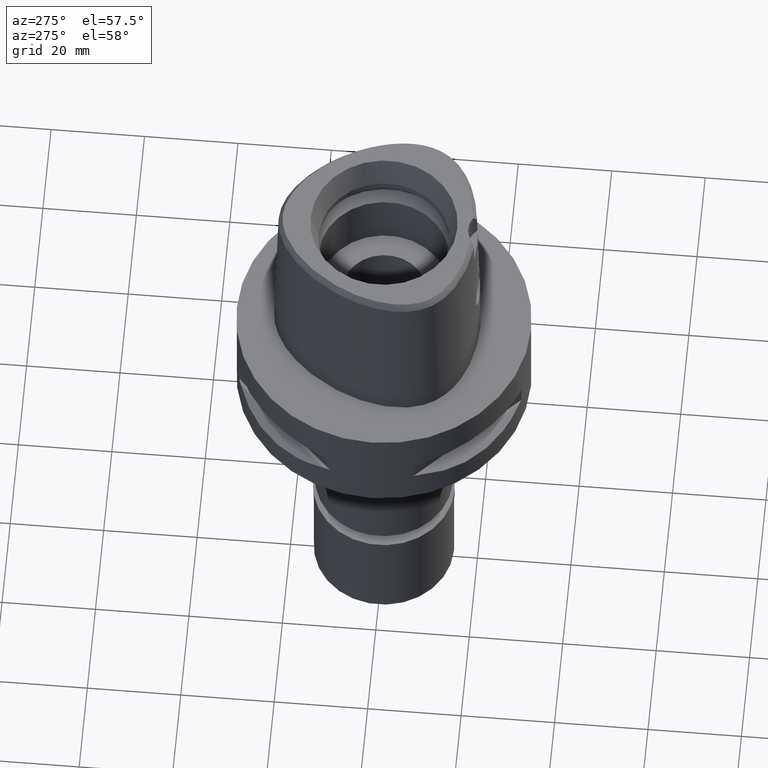
[diagram: clean part render]
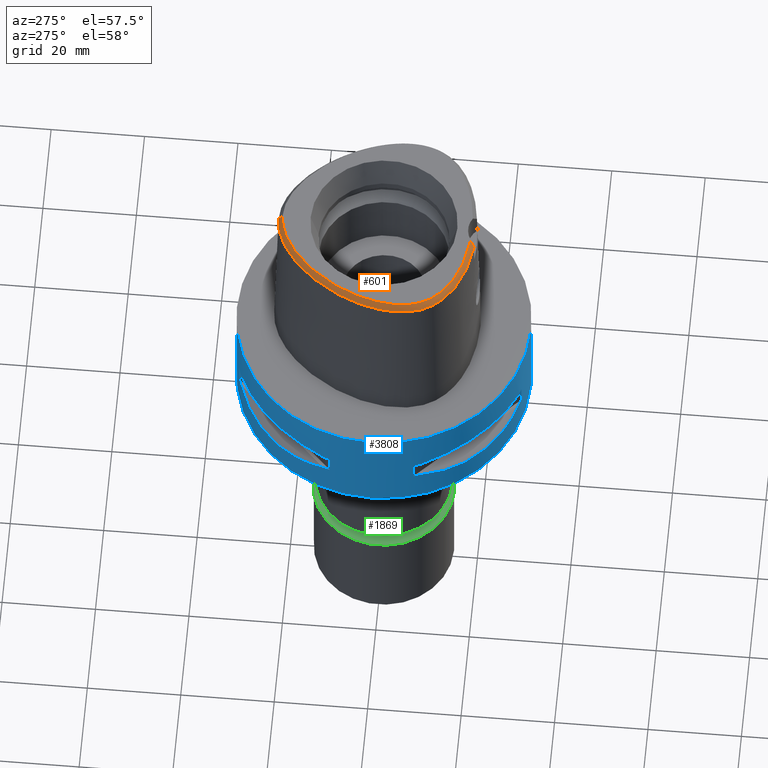
[diagram: same view with three faces highlighted in distinct colors, each labeled with its STEP entity id]
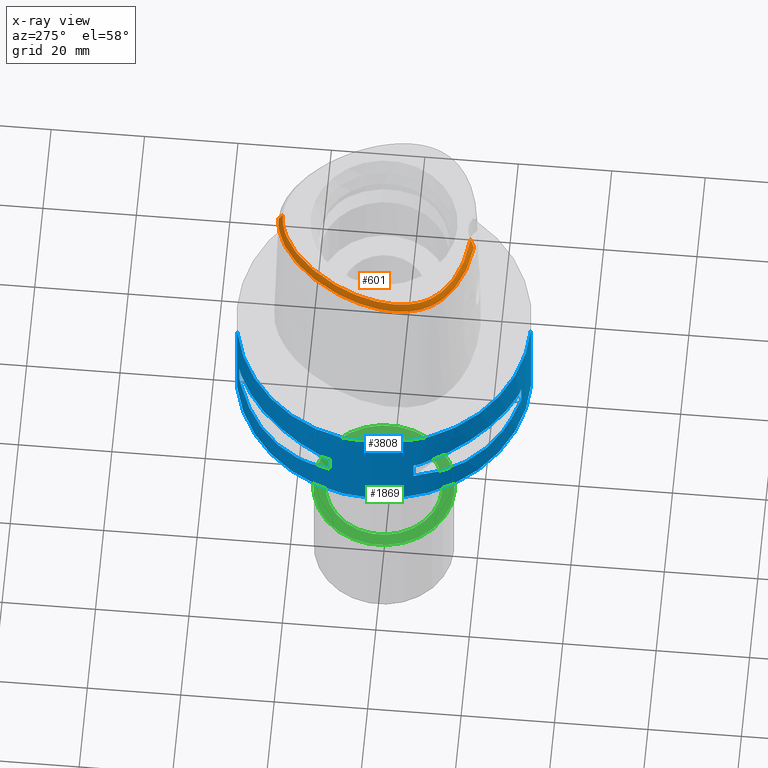
[diagram: x-ray of the same camera — body ghosted, the three highlighted faces saturated]
A machine part, auxiliary view with three faces highlighted in distinct colors.
The next image is the same camera in x-ray (body ghosted, the three faces saturated) — at least one of them is partly hidden behind the body in this view.
Their STEP definitions:

[orange] entity #601 — the highlighted face is a freeform B-spline surface patch.
#10 = CARTESIAN_POINT ( 'NONE',  ( -11.68541370873999874, -17.70140282611000160, 36.36825280364999458 ) ) ;
#18 = CARTESIAN_POINT ( 'NONE',  ( -0.02536168205909999918, 21.60238568348000143, 38.15356320889999608 ) ) ;
#28 = CARTESIAN_POINT ( 'NONE',  ( -21.07430010672434406, -0.4408303445192736092, 36.52186244848014240 ) ) ;
#34 = CARTESIAN_POINT ( 'NONE',  ( -19.52469416757000076, -9.976202825520999795, 37.55845989579999866 ) ) ;
#40 = CARTESIAN_POINT ( 'NONE',  ( -3.481017203589037656, 21.13509756881235546, 37.99999999999982947 ) ) ;
#61 = CARTESIAN_POINT ( 'NONE',  ( -7.799894655972999580, 19.31226008608000200, 37.55845985679999899 ) ) ;
#81 = CARTESIAN_POINT ( 'NONE',  ( -5.453386489175000129, 21.41609540462000183, 36.36825355437000695 ) ) ;
#101 = CARTESIAN_POINT ( 'NONE',  ( -13.16083509483999947, 15.53569432645999804, 36.36825392984000160 ) ) ;
#118 = CARTESIAN_POINT ( 'NONE',  ( -6.370994742500000640, -19.26689788677000337, 36.36825288092000363 ) ) ;
#125 = CARTESIAN_POINT ( 'NONE',  ( -10.14002331424000047, 18.45002533329000016, 36.36825458823999924 ) ) ;
#148 = CARTESIAN_POINT ( 'NONE',  ( -6.171190017065999456, -18.22903470633000111, 38.15356325605999643 ) ) ;
#153 = CARTESIAN_POINT ( 'NONE',  ( -6.892170536097999900, 19.87976563052999879, 37.55845984679000082 ) ) ;
#174 = EDGE_CURVE ( 'NONE', #3855, #1877, #3050, .T. ) ;
#181 = CARTESIAN_POINT ( 'NONE',  ( -20.58001165219999962, 1.760525253298000026, 36.36825731416999474 ) ) ;
#206 = CARTESIAN_POINT ( 'NONE',  ( -18.15919541242000079, 5.636065067888999636, 38.15356320821999958 ) ) ;
#230 = CARTESIAN_POINT ( 'NONE',  ( -20.19801792427000109, 0.2765117294714000140, 37.55846079323999476 ) ) ;
#238 = CARTESIAN_POINT ( 'NONE',  ( -19.98419490691548361, -7.809898894995556340, 37.99999999999954525 ) ) ;
#255 = CARTESIAN_POINT ( 'NONE',  ( -20.06142644903999894, -7.008041879089999426, 38.15356325670999382 ) ) ;
#266 = CARTESIAN_POINT ( 'NONE',  ( -18.31748213707052386, -11.58791794387970953, 37.99999999999789679 ) ) ;
#282 = CARTESIAN_POINT ( 'NONE',  ( -19.46403660646000233, -9.196295789817000355, 38.15356319624000747 ) ) ;
#288 = CARTESIAN_POINT ( 'NONE',  ( -19.78262210840454571, -8.543146992552236085, 38.00000000000492406 ) ) ;
#298 = CARTESIAN_POINT ( 'NONE',  ( -3.637738201363999835, -19.56971413236999879, 36.52186244848000030 ) ) ;
#303 = CARTESIAN_POINT ( 'NONE',  ( -19.53921096000000190, -10.75410329535000109, 36.96335626898999749 ) ) ;
#309 = CARTESIAN_POINT ( 'NONE',  ( -19.26324493738955468, 2.868570891456752481, 38.00000000000336087 ) ) ;
#323 = CARTESIAN_POINT ( 'NONE',  ( -17.38344252638000142, -12.62301079890000111, 38.15356323410999551 ) ) ;
#330 = CARTESIAN_POINT ( 'NONE',  ( -2.885328801147000188, 21.94090383424000024, 36.96335682304000159 ) ) ;
#332 = CARTESIAN_POINT ( 'NONE',  ( -12.44116897271013222, 14.89128547409494274, 38.00000000000293454 ) ) ;
#341 = CARTESIAN_POINT ( 'NONE',  ( -10.15538788053403430, 18.47129535094069297, 36.52186244848014240 ) ) ;
#348 = CARTESIAN_POINT ( 'NONE',  ( -14.71571127375999843, -16.16839555298000164, 36.36825354994000037 ) ) ;
#356 = CARTESIAN_POINT ( 'NONE',  ( -0.6662816471515000671, 21.93473249767999889, 37.55845978047999267 ) ) ;
#368 = CARTESIAN_POINT ( 'NONE',  ( -20.67704215116265587, -8.734985316449067838, 36.52186244848014240 ) ) ;
#374 = CARTESIAN_POINT ( 'NONE',  ( -18.17114959842000133, -13.32805599100000116, 36.36825311412999895 ) ) ;
#385 = B_SPLINE_CURVE_WITH_KNOTS ( 'NONE', 3,
 ( #2146, #1045, #4827, #1067, #662, #2567, #3679, #683, #1386, #1844, #3706, #2916, #4108, #2194, #635, #1767, #2515, #1025, #266, #1361, #4905, #4853, #3405, #288, #238, #2238, #3382, #4454, #1792, #3749, #3310, #2540, #3335, #1818, #309, #4080, #1089, #1465, #3773, #3358, #4880, #2976, #2998, #332, #4508, #2592, #2895, #4532, #2618, #4157, #706, #4427, #991, #40, #4555, #2694, #4649, #1116, #3024, #4200 ),
 .UNSPECIFIED., .F., .F.,
 ( 4, 1, 1, 1, 1, 1, 1, 1, 1, 1, 1, 1, 1, 1, 1, 1, 1, 1, 1, 1, 1, 1, 1, 1, 1, 1, 1, 1, 1, 1, 1, 1, 1, 1, 1, 1, 1, 1, 1, 1, 1, 1, 1, 1, 1, 1, 1, 1, 1, 1, 1, 1, 1, 1, 1, 1, 1, 4 ),
 ( 0.0000000000000000000, 0.005420919554200098744, 0.02318126027639999531, 0.04094160099879995407, 0.05870194172099996166, 0.07646228244330000035, 0.09422262316550000794, 0.1119829638877999356, 0.1297433046099999432, 0.1475036453321999508, 0.1652639860544999895, 0.1830243267768000281, 0.2007846674991000668, 0.2185450082212999634, 0.2363053489436000021, 0.2540656896658000097, 0.2718260303881000484, 0.2895863711103000560, 0.3073467118325999836, 0.3251070525547999912, 0.3428673932771000299, 0.3606277339994000686, 0.3783880747216000762, 0.3961484154438998928, 0.4139087561661000114, 0.4316690968884000501, 0.4494294376106000577, 0.4671897783328999854, 0.4849501190552000240, 0.5027104597774000316, 0.5204708004996999593, 0.5382311412219000779, 0.5559914819442000056, 0.5737518226664000132, 0.5915121633886999408, 0.6092725041108999484, 0.6270328448331999871, 0.6447931855555000258, 0.6625535262777000334, 0.6803138669999999610, 0.6980742077221999686, 0.7158345484445000073, 0.7335948891667000149, 0.7513552298890000536, 0.7691155706112000612, 0.7868759113336000199, 0.8046362520558000275, 0.8223965927780999552, 0.8401569335002999628, 0.8579172742224999704, 0.8756776149448000091, 0.8934379556670000166, 0.9111982963893099363, 0.9289586371115700070, 0.9467189778338299666, 0.9644793185560800453, 0.9822396592783400049, 1.000000000000000000 ),
 .UNSPECIFIED. ) ;
#387 = CARTESIAN_POINT ( 'NONE',  ( -17.90324032096835438, -13.53935111955521542, 36.52186244848014240 ) ) ;
#396 = CARTESIAN_POINT ( 'NONE',  ( -18.59832722528999938, -10.98846559693000025, 38.15356322102999087 ) ) ;
#420 = CARTESIAN_POINT ( 'NONE',  ( -7.577851884129000126, -17.92177848412000074, 38.15356296056999952 ) ) ;
#425 = CARTESIAN_POINT ( 'NONE',  ( 0.6481424823393999723, 22.63549275273999939, 36.36825257414999868 ) ) ;
#441 = CARTESIAN_POINT ( 'NONE',  ( -2.291373722108999811, -19.07186647532000023, 37.55846010189000594 ) ) ;
#448 = CARTESIAN_POINT ( 'NONE',  ( -3.453654929095999915, 21.04838429951999856, 38.15356319658000217 ) ) ;
#465 = CARTESIAN_POINT ( 'NONE',  ( -3.550376728679999871, -18.96800584790999977, 37.55846008555000282 ) ) ;
#469 = CARTESIAN_POINT ( 'NONE',  ( -12.89837052961999930, 15.30067633123000093, 36.96335700568000249 ) ) ;
#493 = CARTESIAN_POINT ( 'NONE',  ( -4.347646999291000292, 21.11090740705999735, 37.55845983830000279 ) ) ;
#516 = CARTESIAN_POINT ( 'NONE',  ( -16.80635459680000210, 8.474873168098000065, 38.15356320304999826 ) ) ;
#539 = CARTESIAN_POINT ( 'NONE',  ( -5.165149829193000031, 20.77302124779000181, 37.55845997991000473 ) ) ;
#547 = DIRECTION ( 'NONE',  ( -1.103961658257015079E-11, -0.5092834681090075977, 0.8605988316927122295 ) ) ;
#567 = CARTESIAN_POINT ( 'NONE',  ( -20.40816686400999913, -7.070766572260001048, 37.55845979582999661 ) ) ;
#586 = CARTESIAN_POINT ( 'NONE',  ( -7.300578999876274899, -19.07170748892199796, 36.52186244848014240 ) ) ;
#593 = CARTESIAN_POINT ( 'NONE',  ( -18.71107534282000273, 4.225150080324999280, 38.15356329719999451 ) ) ;
#601 = ADVANCED_FACE ( 'NONE', ( #3841 ), #1430, .F. ) ;
#625 = CARTESIAN_POINT ( 'NONE',  ( -21.23804753757000086, -6.298797976120000364, 36.36825351627999936 ) ) ;
#635 = CARTESIAN_POINT ( 'NONE',  ( -16.36032397153822515, -13.76458520345111936, 38.00000000000185452 ) ) ;
#654 = CARTESIAN_POINT ( 'NONE',  ( -20.70640925616999795, -8.826325477641001171, 36.36825303241000285 ) ) ;
#662 = CARTESIAN_POINT ( 'NONE',  ( -6.188376196366313309, -18.31830638230976405, 38.00000000000031974 ) ) ;
#674 = CARTESIAN_POINT ( 'NONE',  ( -13.62677347393000105, -16.39122963142999723, 36.96335641033999764 ) ) ;
#683 = CARTESIAN_POINT ( 'NONE',  ( -10.17136073855085243, -17.24644253470297883, 38.00000000000436984 ) ) ;
#696 = CARTESIAN_POINT ( 'NONE',  ( -16.87239012634000090, -13.16133184509000031, 38.15356324791000020 ) ) ;
#706 = CARTESIAN_POINT ( 'NONE',  ( -5.893543501600960965, 20.13235399351943755, 38.00000000000260769 ) ) ;
#719 = CARTESIAN_POINT ( 'NONE',  ( -18.82152680984999904, -11.93828527634999936, 36.96335626947999486 ) ) ;
#745 = CARTESIAN_POINT ( 'NONE',  ( -14.34685387166000048, -15.56794482113000022, 37.55845997870999753 ) ) ;
#773 = CARTESIAN_POINT ( 'NONE',  ( -9.104696733659999097, -18.23835998178000040, 36.96335910544000569 ) ) ;
#823 = CARTESIAN_POINT ( 'NONE',  ( -2.106278820532999863, -19.43609212578000367, 36.96335701971000276 ) ) ;
#829 = CARTESIAN_POINT ( 'NONE',  ( -16.32234466310000087, 10.04298649254999987, 37.55845985064999581 ) ) ;
#852 = CARTESIAN_POINT ( 'NONE',  ( -3.587413847631999886, -19.31828393636999763, 36.96335701515999972 ) ) ;
#859 = CARTESIAN_POINT ( 'NONE',  ( -15.17121241165000001, 11.20685333672000006, 38.15356314518000147 ) ) ;
#878 = CARTESIAN_POINT ( 'NONE',  ( -4.694129662605000419, -18.47722325523000109, 38.15356323643999303 ) ) ;
#883 = CARTESIAN_POINT ( 'NONE',  ( -9.466395240703999292, 17.63552585190000244, 38.15356309538000090 ) ) ;
#906 = CARTESIAN_POINT ( 'NONE',  ( -13.60730367984999845, 13.92742450997999981, 37.55845970732999461 ) ) ;
#930 = CARTESIAN_POINT ( 'NONE',  ( -11.65160611453000072, 16.11111684142999678, 37.55846087543999801 ) ) ;
#956 = CARTESIAN_POINT ( 'NONE',  ( -19.89752708809000126, 1.585269398348999825, 37.55846099729000542 ) ) ;
#982 = CARTESIAN_POINT ( 'NONE',  ( -20.92322387899000091, -8.037409474716998403, 36.36825292916000052 ) ) ;
#991 = CARTESIAN_POINT ( 'NONE',  ( -4.254559144977576146, 20.86660163697397508, 37.99999999999848654 ) ) ;
#1009 = CARTESIAN_POINT ( 'NONE',  ( -20.07023816268999994, -1.023305864085999994, 38.15356319131000618 ) ) ;
#1025 = CARTESIAN_POINT ( 'NONE',  ( -17.91005512243684805, -12.13778127739548651, 37.99999999999809575 ) ) ;
#1037 = CARTESIAN_POINT ( 'NONE',  ( -19.89582315812999980, -7.788487939216000022, 38.15356325151999073 ) ) ;
#1045 = CARTESIAN_POINT ( 'NONE',  ( -2.841965291530292426, -18.76757795571573695, 37.99999999999754152 ) ) ;
#1058 = CARTESIAN_POINT ( 'NONE',  ( -20.29218807441000294, -3.282432020364999925, 38.15356324263999710 ) ) ;
#1067 = CARTESIAN_POINT ( 'NONE',  ( -4.706994425064735310, -18.56721852572744424, 38.00000000000441958 ) ) ;
#1078 = CARTESIAN_POINT ( 'NONE',  ( -17.64601155038999991, -12.85802586293000083, 37.55845986078999488 ) ) ;
#1087 = CARTESIAN_POINT ( 'NONE',  ( -0.02612787192692999846, 21.95476159865999932, 37.55845993327999821 ) ) ;
#1089 = CARTESIAN_POINT ( 'NONE',  ( -18.24302769441974803, 5.671232572958252227, 38.00000000000181188 ) ) ;
#1106 = ORIENTED_EDGE ( 'NONE', *, *, #174, .F. ) ;
#1107 = CARTESIAN_POINT ( 'NONE',  ( -12.33237979248000116, -16.25888947217000080, 38.15356325677999649 ) ) ;
#1116 = CARTESIAN_POINT ( 'NONE',  ( -0.6498990081534651297, 21.67378274708412178, 37.99999999999906208 ) ) ;
#1132 = CARTESIAN_POINT ( 'NONE',  ( -16.09593499048000353, -14.78199351352000157, 36.96335654193000408 ) ) ;
#1152 = CARTESIAN_POINT ( 'NONE',  ( -10.49249409946999911, -18.15755303029999723, 36.36825564648000153 ) ) ;
#1158 = CARTESIAN_POINT ( 'NONE',  ( -2.799430759115999923, 21.59915408683000138, 37.55846000372000049 ) ) ;
#1177 = CARTESIAN_POINT ( 'NONE',  ( -16.76579386997000043, -14.22541198076999969, 36.96335632937999804 ) ) ;
#1186 = CARTESIAN_POINT ( 'NONE',  ( -1.574539081985000086E-11, 22.56201468012000078, 36.52186680743999858 ) ) ;
#1190 = CARTESIAN_POINT ( 'NONE',  ( -21.14970188364198833, -6.717195958887629992, 36.52186244848014240 ) ) ;
#1197 = CARTESIAN_POINT ( 'NONE',  ( -6.304393167355001104, -18.92094349329000025, 36.96335633929999887 ) ) ;
#1205 = CARTESIAN_POINT ( 'NONE',  ( -12.15288928850999994, 16.60630414115999898, 36.36825686385999745 ) ) ;
#1222 = CARTESIAN_POINT ( 'NONE',  ( -7.828025168902001063, -18.94867599219000098, 36.36825602082999609 ) ) ;
#1227 = CARTESIAN_POINT ( 'NONE',  ( -14.55461132559999982, 12.70247097307999873, 37.55846004011999639 ) ) ;
#1250 = CARTESIAN_POINT ( 'NONE',  ( -4.793839252351999924, -19.17474033171999892, 36.96335647176999828 ) ) ;
#1255 = CARTESIAN_POINT ( 'NONE',  ( -16.02005545376000128, 9.862053803364998927, 38.15356323764000024 ) ) ;
#1273 = CARTESIAN_POINT ( 'NONE',  ( -9.204929329675000105, -18.57611662305000166, 36.36825723500999885 ) ) ;
#1280 = CARTESIAN_POINT ( 'NONE',  ( -8.734174293181000692, 18.65636515457999778, 37.55845970307999693 ) ) ;
#1302 = CARTESIAN_POINT ( 'NONE',  ( -9.154560130127999074, 19.22189158388000152, 36.36825253130000135 ) ) ;
#1326 = CARTESIAN_POINT ( 'NONE',  ( -20.18872879012999988, -6.170922382462999956, 38.15356319626000214 ) ) ;
#1351 = CARTESIAN_POINT ( 'NONE',  ( -20.53850170593999636, -6.213547580348000032, 37.55845996960000122 ) ) ;
#1361 = CARTESIAN_POINT ( 'NONE',  ( -18.67608643721816009, -11.03561202290891607, 37.99999999999732125 ) ) ;
#1377 = CARTESIAN_POINT ( 'NONE',  ( -20.99615232785999908, -3.250754035653999896, 36.96335642994000636 ) ) ;
#1386 = CARTESIAN_POINT ( 'NONE',  ( -11.31790883121293767, -16.80796958613732173, 37.99999999999862865 ) ) ;
#1402 = CARTESIAN_POINT ( 'NONE',  ( -20.41859463842999745, -0.9705720049152000151, 37.55845998385000684 ) ) ;
#1404 = CARTESIAN_POINT ( 'NONE',  ( -3.637738201363999835, -19.56971413236999879, 36.52186244848000030 ) ) ;
#1430 = B_SPLINE_SURFACE_WITH_KNOTS ( 'NONE', 3, 3, ( 
 ( #2337, #2286, #1512, #425 ),
 ( #2258, #4598, #1559, #1912 ),
 ( #18, #1087, #3021, #4249 ),
 ( #2996, #356, #3447, #1537 ),
 ( #3073, #3403, #1952, #4903 ),
 ( #2615, #1887, #4154, #3426 ),
 ( #2235, #1158, #330, #3193 ),
 ( #448, #2361, #3141, #4669 ),
 ( #1681, #493, #4368, #2830 ),
 ( #2457, #539, #1584, #81 ),
 ( #4742, #3932, #3223, #2028 ),
 ( #3516, #153, #3495, #3118 ),
 ( #3884, #61, #4647, #3541 ),
 ( #3565, #1280, #2385, #1302 ),
 ( #883, #2409, #4696, #125 ),
 ( #2006, #2811, #3907, #1983 ),
 ( #1654, #930, #4720, #1205 ),
 ( #4346, #2756, #469, #101 ),
 ( #3982, #906, #2737, #1610 ),
 ( #1631, #1227, #4299, #2432 ),
 ( #859, #3165, #4273, #2785 ),
 ( #1255, #829, #4322, #3953 ),
 ( #516, #2053, #3593, #1758 ),
 ( #3643, #3697, #3301, #4395 ),
 ( #206, #4069, #1735, #4819 ),
 ( #593, #2860, #2081, #3620 ),
 ( #4844, #3275, #2506, #2137 ),
 ( #3673, #956, #2964, #181 ),
 ( #1782, #230, #2483, #3250 ),
 ( #1009, #1402, #4790, #1806 ),
 ( #4500, #4765, #4011, #2557 ),
 ( #1058, #2910, #1377, #2582 ),
 ( #2886, #3326, #3721, #2532 ),
 ( #2160, #1706, #2106, #3352 ),
 ( #1326, #1351, #4444, #625 ),
 ( #255, #567, #4121, #2185 ),
 ( #1037, #4418, #4474, #982 ),
 ( #2937, #4099, #4038, #654 ),
 ( #282, #4872, #1432, #3784 ),
 ( #1554, #34, #3463, #4617 ),
 ( #3741, #2224, #303, #3438 ),
 ( #396, #2654, #3371, #3832 ),
 ( #4919, #4547, #719, #2205 ),
 ( #4571, #4895, #4147, #2307 ),
 ( #323, #1078, #2277, #374 ),
 ( #696, #3086, #4946, #3763 ),
 ( #1832, #1858, #1177, #1506 ),
 ( #1928, #4190, #1132, #1905 ),
 ( #3395, #3807, #1878, #2987 ),
 ( #1478, #745, #3010, #348 ),
 ( #4170, #1456, #674, #4521 ),
 ( #1107, #2630, #2252, #2709 ),
 ( #2605, #3418, #3039, #10 ),
 ( #1530, #3066, #4592, #1152 ),
 ( #2682, #4217, #773, #1273 ),
 ( #420, #4639, #4715, #1222 ),
 ( #148, #2380, #1197, #118 ),
 ( #878, #3948, #1250, #2333 ),
 ( #3857, #465, #852, #4291 ),
 ( #1650, #3535, #2048, #3878 ),
 ( #1677, #441, #2731, #3137 ),
 ( #1976, #3187, #823, #4244 ) ),
 .UNSPECIFIED., .F., .F., .F.,
 ( 4, 1, 1, 1, 1, 1, 1, 1, 1, 1, 1, 1, 1, 1, 1, 1, 1, 1, 1, 1, 1, 1, 1, 1, 1, 1, 1, 1, 1, 1, 1, 1, 1, 1, 1, 1, 1, 1, 1, 1, 1, 1, 1, 1, 1, 1, 1, 1, 1, 1, 1, 1, 1, 1, 1, 1, 1, 1, 1, 4 ),
 ( 4, 4 ),
 ( -0.01585043674195000044, 0.0000000000000000000, 0.01776034072165999858, 0.03552068144391999638, 0.05328102216616999870, 0.07104136288842999303, 0.08880170361069000817, 0.1065620443330000111, 0.1243223850551999909, 0.1420827257775000019, 0.1598430664997000095, 0.1776034072219000171, 0.1953637479442000002, 0.2131240886664000078, 0.2308844293887999943, 0.2486447701109999742, 0.2664051108332999851, 0.2841654515554999927, 0.3019257922778000314, 0.3196861329999999835, 0.3374464737223000221, 0.3552068144444999742, 0.3729671551668000129, 0.3907274958890999961, 0.4084878366113000037, 0.4262481773335999868, 0.4440085180557999944, 0.4617688587780999776, 0.4795291995003000407, 0.4972895402225999684, 0.5150498809447999760, 0.5328102216671000146, 0.5505705623893999423, 0.5683309031115999499, 0.5860912438338999886, 0.6038515845561001072, 0.6216119252783999238, 0.6393722660005999314, 0.6571326067228999701, 0.6748929474452000088, 0.6926532881674000164, 0.7104136288896999440, 0.7281739696118999516, 0.7459343103341999903, 0.7636946510563999979, 0.7814549917787000366, 0.7992153325008999332, 0.8169756732231999719, 0.8347360139455000105, 0.8524963546678000492, 0.8702566953900000568, 0.8880170361122000644, 0.9057773768344999921, 0.9235377175566999997, 0.9412980582790000383, 0.9590583990012000459, 0.9768187397236000047, 0.9945790804457999013, 1.000000000000000000, 1.006922200500000031 ),
 ( -0.08066292915195000246, 1.080690774261000131 ),
 .UNSPECIFIED. ) ;
#1432 = CARTESIAN_POINT ( 'NONE',  ( -20.12409775599999762, -9.443338325459999183, 36.96335674312999942 ) ) ;
#1456 = CARTESIAN_POINT ( 'NONE',  ( -13.45903343852000056, -16.08137917899999891, 37.55845982793999838 ) ) ;
#1465 = CARTESIAN_POINT ( 'NONE',  ( -17.60426951086821745, 7.098774535281576092, 37.99999999999933209 ) ) ;
#1478 = CARTESIAN_POINT ( 'NONE',  ( -14.16242517060999973, -15.26771945521000085, 38.15356319310000544 ) ) ;
#1506 = CARTESIAN_POINT ( 'NONE',  ( -16.99856097015999978, -14.48995766728999968, 36.36825286530999790 ) ) ;
#1512 = CARTESIAN_POINT ( 'NONE',  ( 0.6286097464847999472, 22.28388217364999946, 36.96335614440999962 ) ) ;
#1525 = CARTESIAN_POINT ( 'NONE',  ( -2.376843896517972787, 22.39422508474270046, 36.52186244848014240 ) ) ;
#1530 = CARTESIAN_POINT ( 'NONE',  ( -10.14113896953000094, -17.16069818577999939, 38.15356299580000154 ) ) ;
#1537 = CARTESIAN_POINT ( 'NONE',  ( -0.7104423603912000118, 22.63814341351000081, 36.36825281736999926 ) ) ;
#1548 = CARTESIAN_POINT ( 'NONE',  ( -7.108589416785669357, 20.52412325828526107, 36.52186244848014240 ) ) ;
#1554 = CARTESIAN_POINT ( 'NONE',  ( -19.20287278963000333, -9.832635732423000263, 38.15356322192999983 ) ) ;
#1559 = CARTESIAN_POINT ( 'NONE',  ( 0.4141302142984999990, 22.29505073554000205, 36.96335644819000521 ) ) ;
#1571 = CARTESIAN_POINT ( 'NONE',  ( -16.39211280191499043, -14.95758113318786720, 36.52186244848014240 ) ) ;
#1584 = CARTESIAN_POINT ( 'NONE',  ( -5.309268159183999636, 21.09455832621000226, 36.96335676713999874 ) ) ;
#1610 = CARTESIAN_POINT ( 'NONE',  ( -14.15436427925000018, 14.37149618403999973, 36.36825254704000088 ) ) ;
#1631 = CARTESIAN_POINT ( 'NONE',  ( -14.27078367702999984, 12.49376398646999853, 38.15356317174000367 ) ) ;
#1640 = VERTEX_POINT ( 'NONE', #1186 ) ;
#1650 = CARTESIAN_POINT ( 'NONE',  ( -2.631500402940999628, -18.69473499247999726, 38.15356314541000415 ) ) ;
#1654 = CARTESIAN_POINT ( 'NONE',  ( -11.40096452753999934, 15.86352319155999879, 38.15356288122000450 ) ) ;
#1677 = CARTESIAN_POINT ( 'NONE',  ( -2.267591036236999980, -18.72049483177000084, 38.15356315025999834 ) ) ;
#1681 = CARTESIAN_POINT ( 'NONE',  ( -4.222184122425000297, 20.78163453922999793, 38.15356324193000148 ) ) ;
#1706 = CARTESIAN_POINT ( 'NONE',  ( -20.62486896198999986, -5.295382819310999523, 37.55846011463999901 ) ) ;
#1735 = CARTESIAN_POINT ( 'NONE',  ( -18.80894564853000261, 5.908634228329000315, 36.96335666225999717 ) ) ;
#1758 = CARTESIAN_POINT ( 'NONE',  ( -17.73787305148999849, 8.974185318015001300, 36.36825344417000139 ) ) ;
#1765 = VERTEX_POINT ( 'NONE', #3230 ) ;
#1767 = CARTESIAN_POINT ( 'NONE',  ( -16.93638123745085267, -13.22593246128543321, 37.99999999999938893 ) ) ;
#1782 = CARTESIAN_POINT ( 'NONE',  ( -19.85281076202999984, 0.2060799553928000238, 38.15356290981999621 ) ) ;
#1792 = CARTESIAN_POINT ( 'NONE',  ( -20.40060226222328055, -4.311417605381407725, 38.00000000000665779 ) ) ;
#1804 = EDGE_CURVE ( 'NONE', #1640, #1765, #3990, .T. ) ;
#1806 = CARTESIAN_POINT ( 'NONE',  ( -21.11530758989999867, -0.8651042865726000786, 36.36825356893000105 ) ) ;
#1818 = CARTESIAN_POINT ( 'NONE',  ( -19.64434054692757670, 1.520253387635341680, 37.99999999999442934 ) ) ;
#1832 = CARTESIAN_POINT ( 'NONE',  ( -16.30025966960000261, -13.69632060773000148, 38.15356325752999567 ) ) ;
#1844 = CARTESIAN_POINT ( 'NONE',  ( -12.37132652997411775, -16.34104299088199497, 37.99999999999779732 ) ) ;
#1852 = CARTESIAN_POINT ( 'NONE',  ( -14.22011356156233397, -16.41829364186049389, 36.52186244848014240 ) ) ;
#1858 = CARTESIAN_POINT ( 'NONE',  ( -16.53302676978999841, -13.96086629424999970, 37.55845979345999552 ) ) ;
#1877 = VERTEX_POINT ( 'NONE', #1404 ) ;
#1878 = CARTESIAN_POINT ( 'NONE',  ( -15.35287878070000112, -15.33045034399999906, 36.96335706565999857 ) ) ;
#1887 = CARTESIAN_POINT ( 'NONE',  ( -2.065349787298000006, 21.75975854130999920, 37.55845984143999772 ) ) ;
#1905 = CARTESIAN_POINT ( 'NONE',  ( -16.31295884303999699, -15.05959103880999983, 36.36825319986999716 ) ) ;
#1912 = CARTESIAN_POINT ( 'NONE',  ( 0.4272153490692000011, 22.64703516080000156, 36.36825305232000716 ) ) ;
#1928 = CARTESIAN_POINT ( 'NONE',  ( -15.66188728538000063, -14.22679846294000150, 38.15356322603999217 ) ) ;
#1952 = CARTESIAN_POINT ( 'NONE',  ( -1.399985116222000059, 22.22007738868000004, 36.96335607929000133 ) ) ;
#1976 = CARTESIAN_POINT ( 'NONE',  ( -2.063028521980999841, -18.73308334341000148, 38.15356315526999964 ) ) ;
#1983 = CARTESIAN_POINT ( 'NONE',  ( -11.14223183992000088, 17.57859109341000448, 36.36825706020000126 ) ) ;
#2006 = CARTESIAN_POINT ( 'NONE',  ( -10.42820751130000012, 16.79928676523000064, 38.15356286275000031 ) ) ;
#2028 = CARTESIAN_POINT ( 'NONE',  ( -6.337554785050000028, 20.99040982921000165, 36.36825369380999717 ) ) ;
#2048 = CARTESIAN_POINT ( 'NONE',  ( -2.686766931837999639, -19.39693340967000168, 36.96335708622000737 ) ) ;
#2053 = CARTESIAN_POINT ( 'NONE',  ( -17.11686074836000060, 8.641310551404000506, 37.55845995009000404 ) ) ;
#2081 = CARTESIAN_POINT ( 'NONE',  ( -19.37315834773999867, 4.466239016677000073, 36.96335606153000697 ) ) ;
#2105 = ORIENTED_EDGE ( 'NONE', *, *, #3290, .T. ) ;
#2106 = CARTESIAN_POINT ( 'NONE',  ( -20.97648374678999872, -5.318176767674001049, 36.96335708344999915 ) ) ;
#2137 = CARTESIAN_POINT ( 'NONE',  ( -20.18594222640999902, 3.154609596630999935, 36.36825513322000347 ) ) ;
#2145 = CARTESIAN_POINT ( 'NONE',  ( -3.014271304801561246, -18.99139391529898546, 37.59976690314804415 ) ) ;
#2146 = CARTESIAN_POINT ( 'NONE',  ( -2.682279906006999948, -18.78035848609999903, 38.00000000000000000 ) ) ;
#2160 = CARTESIAN_POINT ( 'NONE',  ( -20.27325417719000100, -5.272588870948000661, 38.15356314582000152 ) ) ;
#2185 = CARTESIAN_POINT ( 'NONE',  ( -21.10164769397000128, -7.196215958598000562, 36.36825287406000484 ) ) ;
#2194 = CARTESIAN_POINT ( 'NONE',  ( -15.71788912669162208, -14.29843101566231667, 37.99999999999629097 ) ) ;
#2205 = CARTESIAN_POINT ( 'NONE',  ( -19.11088248656000133, -12.13941978299000191, 36.36825277102000342 ) ) ;
#2224 = CARTESIAN_POINT ( 'NONE',  ( -19.22691698876000288, -10.59082709311999970, 37.55845976772999961 ) ) ;
#2228 = VECTOR ( 'NONE', #547, 1000.000000000000227 ) ;
#2235 = CARTESIAN_POINT ( 'NONE',  ( -2.713532717084000012, 21.25740433941000163, 38.15356318440000649 ) ) ;
#2238 = CARTESIAN_POINT ( 'NONE',  ( -20.15090095365025391, -7.024227649787309957, 38.00000000000500933 ) ) ;
#2245 = CARTESIAN_POINT ( 'NONE',  ( -20.09619618740691394, -10.23243843868715430, 36.52186244848014240 ) ) ;
#2252 = CARTESIAN_POINT ( 'NONE',  ( -12.63424026052999949, -16.89562829053999593, 36.96335633441999846 ) ) ;
#2258 = CARTESIAN_POINT ( 'NONE',  ( 0.3879599447570000192, 21.59108188500999859, 38.15356323992999421 ) ) ;
#2277 = CARTESIAN_POINT ( 'NONE',  ( -17.90858057440999929, -13.09304092696999966, 36.96335648745999691 ) ) ;
#2286 = CARTESIAN_POINT ( 'NONE',  ( 0.6090770106302999531, 21.93227159455999953, 37.55845971467000055 ) ) ;
#2307 = CARTESIAN_POINT ( 'NONE',  ( -18.66793844289000148, -12.73713815382000014, 36.36825366487999389 ) ) ;
#2325 = CARTESIAN_POINT ( 'NONE',  ( -19.88562090098576363, 4.345879983792007017, 36.52186244848014240 ) ) ;
#2333 = CARTESIAN_POINT ( 'NONE',  ( -4.843694047226000166, -19.52349886996999828, 36.36825308942999868 ) ) ;
#2337 = CARTESIAN_POINT ( 'NONE',  ( 0.5895442747757000390, 21.58066101548000049, 38.15356328492999438 ) ) ;
#2361 = CARTESIAN_POINT ( 'NONE',  ( -3.559691910843999718, 21.38442410336000066, 37.55845996869999937 ) ) ;
#2380 = CARTESIAN_POINT ( 'NONE',  ( -6.237791592210998992, -18.57498909981000068, 37.55845979768000120 ) ) ;
#2385 = CARTESIAN_POINT ( 'NONE',  ( -8.944367211655000816, 18.93912836923000143, 36.96335611718999559 ) ) ;
#2409 = CARTESIAN_POINT ( 'NONE',  ( -9.690937931881000722, 17.90702567902999931, 37.55846025966999235 ) ) ;
#2432 = CARTESIAN_POINT ( 'NONE',  ( -15.12226662273999978, 13.11988494629000002, 36.36825377685999428 ) ) ;
#2457 = CARTESIAN_POINT ( 'NONE',  ( -5.021031499202000425, 20.45148416937000135, 38.15356319268000362 ) ) ;
#2465 = CARTESIAN_POINT ( 'NONE',  ( -1.574539081985000086E-11, 22.56201468012000078, 36.52186680743999858 ) ) ;
#2483 = CARTESIAN_POINT ( 'NONE',  ( -20.54322508651000234, 0.3469435035499000008, 36.96335867666000041 ) ) ;
#2486 = CARTESIAN_POINT ( 'NONE',  ( -2.682279906006999948, -18.78035848609999903, 38.00000000000000000 ) ) ;
#2506 = CARTESIAN_POINT ( 'NONE',  ( -19.84943153715000008, 3.050290354581000063, 36.96335777017999646 ) ) ;
#2515 = CARTESIAN_POINT ( 'NONE',  ( -17.45119705494091988, -12.68365517585234770, 37.99999999999938893 ) ) ;
#2532 = CARTESIAN_POINT ( 'NONE',  ( -21.36667654693000173, -4.320434305570000078, 36.36825322568999752 ) ) ;
#2540 = CARTESIAN_POINT ( 'NONE',  ( -20.16012968311504139, -1.009698174524069403, 37.99999999999889155 ) ) ;
#2557 = CARTESIAN_POINT ( 'NONE',  ( -21.26641748340000149, -2.082763103438999952, 36.36825261802000142 ) ) ;
#2566 = CARTESIAN_POINT ( 'NONE',  ( -2.682279906006999948, -18.78035848609999903, 38.00000000000000000 ) ) ;
#2567 = CARTESIAN_POINT ( 'NONE',  ( -7.599370508970773486, -18.01010694911734333, 38.00000000000499512 ) ) ;
#2582 = CARTESIAN_POINT ( 'NONE',  ( -21.34813445458999936, -3.234915043298999926, 36.36825302359000034 ) ) ;
#2591 = CARTESIAN_POINT ( 'NONE',  ( -3.637738201363999835, -19.56971413236999879, 36.52186244848000030 ) ) ;
#2592 = CARTESIAN_POINT ( 'NONE',  ( -10.48962422759511526, 16.86631853279375548, 38.00000000000175504 ) ) ;
#2605 = CARTESIAN_POINT ( 'NONE',  ( -11.28332305199000096, -16.72388883869999887, 38.15356326332999970 ) ) ;
#2615 = CARTESIAN_POINT ( 'NONE',  ( -2.000218362916999837, 21.41344357339999860, 38.15356324083999340 ) ) ;
#2618 = CARTESIAN_POINT ( 'NONE',  ( -7.655222869371832495, 19.09452359226587248, 37.99999999999369749 ) ) ;
#2624 = CARTESIAN_POINT ( 'NONE',  ( -0.7901461696976538329, 22.56201478746399047, 36.52186244848014240 ) ) ;
#2630 = CARTESIAN_POINT ( 'NONE',  ( -12.48331002651000077, -16.57725888135000147, 37.55845979560000103 ) ) ;
#2654 = CARTESIAN_POINT ( 'NONE',  ( -18.89966738390999978, -11.17117207158000092, 37.55845989838999799 ) ) ;
#2675 = EDGE_LOOP ( 'NONE', ( #2105, #4236, #4068, #1106 ) ) ;
#2682 = CARTESIAN_POINT ( 'NONE',  ( -8.904231541628000457, -17.56284669923000052, 38.15356284629999806 ) ) ;
#2694 = CARTESIAN_POINT ( 'NONE',  ( -2.017025177696718963, 21.50280829367775937, 37.99999999999981526 ) ) ;
#2709 = CARTESIAN_POINT ( 'NONE',  ( -12.78517049456000088, -17.21399769972000016, 36.36825287323999589 ) ) ;
#2724 = CARTESIAN_POINT ( 'NONE',  ( -17.27359245832898438, 9.972912913897898690, 36.52186244848014240 ) ) ;
#2731 = CARTESIAN_POINT ( 'NONE',  ( -2.315156407981000086, -19.42323811886000229, 36.96335705352000645 ) ) ;
#2737 = CARTESIAN_POINT ( 'NONE',  ( -13.88083397954999931, 14.14946034700999888, 36.96335612718999641 ) ) ;
#2756 = CARTESIAN_POINT ( 'NONE',  ( -12.63590596440000091, 15.06565833600000204, 37.55846008150999893 ) ) ;
#2785 = CARTESIAN_POINT ( 'NONE',  ( -16.05143642028000173, 11.79187134139999849, 36.36825405918000342 ) ) ;
#2811 = CARTESIAN_POINT ( 'NONE',  ( -10.66621562084000097, 17.05905487461999925, 37.55846092856999974 ) ) ;
#2830 = CARTESIAN_POINT ( 'NONE',  ( -4.598572753024000370, 21.76945314270999887, 36.36825303106000717 ) ) ;
#2860 = CARTESIAN_POINT ( 'NONE',  ( -19.04211684527999893, 4.345694548501000121, 37.55845967937000296 ) ) ;
#2886 = CARTESIAN_POINT ( 'NONE',  ( -20.30968528677999885, -4.310569046298000195, 38.15356322361999730 ) ) ;
#2895 = CARTESIAN_POINT ( 'NONE',  ( -9.524337278001864249, 17.70558492631239744, 37.99999999999698019 ) ) ;
#2910 = CARTESIAN_POINT ( 'NONE',  ( -20.64417020113999968, -3.266593028009999955, 37.55845983628999818 ) ) ;
#2916 = CARTESIAN_POINT ( 'NONE',  ( -14.21001600787582397, -15.34519100086024324, 38.00000000000085265 ) ) ;
#2937 = CARTESIAN_POINT ( 'NONE',  ( -19.69568476335999918, -8.516497146073000124, 38.15356324180999792 ) ) ;
#2964 = CARTESIAN_POINT ( 'NONE',  ( -20.23876937015000266, 1.672897325823999859, 36.96335915572999653 ) ) ;
#2976 = CARTESIAN_POINT ( 'NONE',  ( -14.34402387965428893, 12.54761970512664071, 37.99999999999879208 ) ) ;
#2987 = CARTESIAN_POINT ( 'NONE',  ( -15.55375812609000086, -15.61993562217000076, 36.36825402425999698 ) ) ;
#2996 = CARTESIAN_POINT ( 'NONE',  ( -0.6442012905316999438, 21.58302703977000192, 38.15356326203999515 ) ) ;
#2998 = CARTESIAN_POINT ( 'NONE',  ( -13.40435640712022014, 13.76268382997115935, 37.99999999999844391 ) ) ;
#3010 = CARTESIAN_POINT ( 'NONE',  ( -14.53128257271000123, -15.86817018705999693, 36.96335676433000117 ) ) ;
#3021 = CARTESIAN_POINT ( 'NONE',  ( -0.02689406179477000017, 22.30713751385000165, 36.96335665765000300 ) ) ;
#3024 = CARTESIAN_POINT ( 'NONE',  ( -0.2181979014508410586, 21.68728795389161235, 37.99999999999995737 ) ) ;
#3039 = CARTESIAN_POINT ( 'NONE',  ( -11.55138348982000096, -17.37556483030999743, 36.96335629021000102 ) ) ;
#3050 = B_SPLINE_CURVE_WITH_KNOTS ( 'NONE', 3,
 ( #2566, #2145, #3726, #2591 ),
 .UNSPECIFIED., .F., .F.,
 ( 4, 4 ),
 ( 0.0000000000000000000, 1.000000000000000000 ),
 .UNSPECIFIED. ) ;
#3060 = CARTESIAN_POINT ( 'NONE',  ( -10.91891098965153439, -18.03046406390607714, 36.52186244848014240 ) ) ;
#3066 = CARTESIAN_POINT ( 'NONE',  ( -10.25825734617999885, -17.49298313395000193, 37.55846054602000095 ) ) ;
#3073 = CARTESIAN_POINT ( 'NONE',  ( -1.312370270100000180, 21.52076108177999814, 38.15356329457999607 ) ) ;
#3079 = CARTESIAN_POINT ( 'NONE',  ( -1.574539081985000086E-11, 22.56201468012000078, 36.52186680743999858 ) ) ;
#3086 = CARTESIAN_POINT ( 'NONE',  ( -17.12037478428999648, -13.41167851719000126, 37.55845982110999870 ) ) ;
#3105 = CARTESIAN_POINT ( 'NONE',  ( -4.757642277159018995, 21.67478330407389819, 36.52186244848014240 ) ) ;
#3118 = CARTESIAN_POINT ( 'NONE',  ( -7.249973094176000110, 20.48685742263000265, 36.36825306242000266 ) ) ;
#3137 = CARTESIAN_POINT ( 'NONE',  ( -2.338939093851999829, -19.77460976240000079, 36.36825400514999984 ) ) ;
#3141 = CARTESIAN_POINT ( 'NONE',  ( -3.665728892590999877, 21.72046390720000275, 36.96335674082999390 ) ) ;
#3165 = CARTESIAN_POINT ( 'NONE',  ( -15.46462041452000058, 11.40185933827999953, 37.55846011651000538 ) ) ;
#3187 = CARTESIAN_POINT ( 'NONE',  ( -2.084653671257000074, -19.08458773460000302, 37.55846008749000475 ) ) ;
#3193 = CARTESIAN_POINT ( 'NONE',  ( -2.971226843178000010, 22.28265358165999999, 36.36825364235999558 ) ) ;
#3223 = CARTESIAN_POINT ( 'NONE',  ( -6.175622432144000307, 20.67747408730999936, 36.96335685572999807 ) ) ;
#3230 = CARTESIAN_POINT ( 'NONE',  ( -3.470663397159000143E-11, 21.68728795390000030, 38.00000000000000000 ) ) ;
#3250 = CARTESIAN_POINT ( 'NONE',  ( -20.88843224875000004, 0.4173752776285000188, 36.36825656007999896 ) ) ;
#3275 = CARTESIAN_POINT ( 'NONE',  ( -19.51292084789999848, 2.945971112531000191, 37.55846040713999656 ) ) ;
#3290 = EDGE_CURVE ( 'NONE', #3855, #1765, #385, .T. ) ;
#3301 = CARTESIAN_POINT ( 'NONE',  ( -18.15825673290999731, 7.362813125447999596, 36.96335710615999659 ) ) ;
#3310 = CARTESIAN_POINT ( 'NONE',  ( -20.30498420086258449, -2.177378896257978980, 38.00000000000663647 ) ) ;
#3326 = CARTESIAN_POINT ( 'NONE',  ( -20.66201570683000099, -4.313857466055000423, 37.55845989098000359 ) ) ;
#3335 = CARTESIAN_POINT ( 'NONE',  ( -19.94188961899547863, 0.2242544969876514582, 38.00000000000462563 ) ) ;
#3352 = CARTESIAN_POINT ( 'NONE',  ( -21.32809853158000024, -5.340970716036999910, 36.36825405227000374 ) ) ;
#3358 = CARTESIAN_POINT ( 'NONE',  ( -16.09805956313673647, 9.908742513517099226, 38.00000000000191847 ) ) ;
#3371 = CARTESIAN_POINT ( 'NONE',  ( -19.20100754253999753, -11.35387854622000070, 36.96335657574999800 ) ) ;
#3382 = CARTESIAN_POINT ( 'NONE',  ( -20.27898581531954747, -6.181921586190096463, 37.99999999999444356 ) ) ;
#3395 = CARTESIAN_POINT ( 'NONE',  ( -14.95112008991999986, -14.75147978765000012, 38.15356314846000174 ) ) ;
#3403 = CARTESIAN_POINT ( 'NONE',  ( -1.356177693160999898, 21.87041923522999909, 37.55845968693000003 ) ) ;
#3405 = CARTESIAN_POINT ( 'NONE',  ( -19.54919922641668961, -9.228169790567822162, 38.00000000000261480 ) ) ;
#3418 = CARTESIAN_POINT ( 'NONE',  ( -11.41735327089999963, -17.04972683450000304, 37.55845977677000036 ) ) ;
#3426 = CARTESIAN_POINT ( 'NONE',  ( -2.195612636060999989, 22.45238847713000041, 36.36825304265000369 ) ) ;
#3438 = CARTESIAN_POINT ( 'NONE',  ( -19.85150493124999826, -10.91737949758999981, 36.36825277023999803 ) ) ;
#3447 = CARTESIAN_POINT ( 'NONE',  ( -0.6883620037713999995, 22.28643795560000029, 36.96335629893000174 ) ) ;
#3457 = CARTESIAN_POINT ( 'NONE',  ( -13.70645028111669284, 15.04851272300173548, 36.52186244848014240 ) ) ;
#3463 = CARTESIAN_POINT ( 'NONE',  ( -19.84651554550000085, -10.11976991861999942, 36.96335656966000016 ) ) ;
#3495 = CARTESIAN_POINT ( 'NONE',  ( -7.071071815137000449, 20.18331152658000249, 36.96335645461000041 ) ) ;
#3516 = CARTESIAN_POINT ( 'NONE',  ( -6.713269257059000239, 19.57621973448999952, 38.15356323897000124 ) ) ;
#3535 = CARTESIAN_POINT ( 'NONE',  ( -2.659133667390000344, -19.04583420108000169, 37.55846011582000443 ) ) ;
#3541 = CARTESIAN_POINT ( 'NONE',  ( -8.189869023351999289, 19.89918621332000015, 36.36825309940000750 ) ) ;
#3565 = CARTESIAN_POINT ( 'NONE',  ( -8.523981374707998881, 18.37360193993000124, 38.15356328896999827 ) ) ;
#3593 = CARTESIAN_POINT ( 'NONE',  ( -17.42736689992999999, 8.807747934709000859, 36.96335669712999561 ) ) ;
#3620 = CARTESIAN_POINT ( 'NONE',  ( -19.70419985019000109, 4.586783484853000026, 36.36825244370000121 ) ) ;
#3643 = CARTESIAN_POINT ( 'NONE',  ( -17.52220458840999839, 7.059661166658999676, 38.15356314246000125 ) ) ;
#3673 = CARTESIAN_POINT ( 'NONE',  ( -19.55628480602999986, 1.497641470874999881, 38.15356283884000277 ) ) ;
#3679 = CARTESIAN_POINT ( 'NONE',  ( -8.930096025510231073, -17.65000298921445676, 38.00000000000230926 ) ) ;
#3697 = CARTESIAN_POINT ( 'NONE',  ( -17.84023066066000140, 7.211237146053000480, 37.55846012431000247 ) ) ;
#3706 = CARTESIAN_POINT ( 'NONE',  ( -13.33457781970412448, -15.85148397417726684, 38.00000000000339639 ) ) ;
#3721 = CARTESIAN_POINT ( 'NONE',  ( -21.01434612687999959, -4.317145885811999761, 36.96335655833000544 ) ) ;
#3726 = CARTESIAN_POINT ( 'NONE',  ( -3.339321438830138877, -19.25325016370249287, 37.10705438597471328 ) ) ;
#3741 = CARTESIAN_POINT ( 'NONE',  ( -18.91462301750999941, -10.42755089087999920, 38.15356326647999907 ) ) ;
#3749 = CARTESIAN_POINT ( 'NONE',  ( -20.38301517462964796, -3.278344853327907593, 38.00000000000639488 ) ) ;
#3756 = CARTESIAN_POINT ( 'NONE',  ( -19.55745547455821054, -11.29150218116794946, 36.52186244848014240 ) ) ;
#3763 = CARTESIAN_POINT ( 'NONE',  ( -17.61634410019000185, -13.91237186140000048, 36.36825296751000280 ) ) ;
#3773 = CARTESIAN_POINT ( 'NONE',  ( -16.88647904405163302, 8.517821442302427215, 37.99999999999785416 ) ) ;
#3784 = CARTESIAN_POINT ( 'NONE',  ( -20.45412833078000148, -9.566859593281000329, 36.36825351658000471 ) ) ;
#3807 = CARTESIAN_POINT ( 'NONE',  ( -15.15199943531000137, -15.04096506582999915, 37.55846010706000015 ) ) ;
#3832 = CARTESIAN_POINT ( 'NONE',  ( -19.50234770116999883, -11.53658502086000048, 36.36825325310999801 ) ) ;
#3841 = FACE_OUTER_BOUND ( 'NONE', #2675, .T. ) ;
#3855 = VERTEX_POINT ( 'NONE', #2486 ) ;
#3857 = CARTESIAN_POINT ( 'NONE',  ( -3.513339609728000301, -18.61772775944999836, 38.15356315594000591 ) ) ;
#3878 = CARTESIAN_POINT ( 'NONE',  ( -2.714400196286000266, -19.74803261826999901, 36.36825405662000321 ) ) ;
#3884 = CARTESIAN_POINT ( 'NONE',  ( -7.604907472283000125, 19.01879702245999937, 38.15356323548999740 ) ) ;
#3907 = CARTESIAN_POINT ( 'NONE',  ( -10.90422373038000003, 17.31882298401999876, 36.96335899437999473 ) ) ;
#3932 = CARTESIAN_POINT ( 'NONE',  ( -6.013690079238000585, 20.36453834540999708, 37.55846001764999897 ) ) ;
#3948 = CARTESIAN_POINT ( 'NONE',  ( -4.743984457478999772, -18.82598179346999956, 37.55845985410999788 ) ) ;
#3953 = CARTESIAN_POINT ( 'NONE',  ( -16.92692308176999916, 10.40485187091000086, 36.36825307664999940 ) ) ;
#3979 = B_SPLINE_CURVE_WITH_KNOTS ( 'NONE', 3,
 ( #298, #4139, #586, #3060, #1852, #1571, #387, #4207, #3756, #2245, #368, #1190, #4633, #28, #2325, #2724, #3457, #341, #1548, #3105, #1525, #2624, #3079 ),
 .UNSPECIFIED., .F., .F.,
 ( 4, 1, 1, 1, 1, 1, 1, 1, 1, 1, 1, 1, 1, 1, 1, 1, 1, 1, 1, 1, 4 ),
 ( 0.0000000000000000000, 0.03580973941715963338, 0.1234633994701163778, 0.1672902294965422088, 0.2111170595229680258, 0.2549438895494990920, 0.2768573045627119034, 0.2987707195758196876, 0.3206841345891377482, 0.3425975496023507261, 0.3864243796287764043, 0.4302512096552022491, 0.4740780396816280939, 0.5617316997345848106, 0.6493853597875417494, 0.7370390198403932169, 0.8246926798932449065, 0.8685195099196707513, 0.9123463399461280154, 0.9561731699725644074, 1.000000000000000000 ),
 .UNSPECIFIED. ) ;
#3982 = CARTESIAN_POINT ( 'NONE',  ( -13.33377338014999935, 13.70538867294000163, 38.15356328747999726 ) ) ;
#3990 = LINE ( 'NONE', #2465, #2228 ) ;
#4011 = CARTESIAN_POINT ( 'NONE',  ( -20.91577965187000032, -2.117269789472000063, 36.96335617228000103 ) ) ;
#4038 = CARTESIAN_POINT ( 'NONE',  ( -20.36950109189999836, -8.723049367118999697, 36.96335643553999972 ) ) ;
#4068 = ORIENTED_EDGE ( 'NONE', *, *, #4340, .F. ) ;
#4069 = CARTESIAN_POINT ( 'NONE',  ( -18.48407053048000037, 5.772349648108999531, 37.55845993524000193 ) ) ;
#4080 = CARTESIAN_POINT ( 'NONE',  ( -18.79649882724575249, 4.256255933891165633, 37.99999999999490541 ) ) ;
#4099 = CARTESIAN_POINT ( 'NONE',  ( -20.03259292763000232, -8.619773256595999911, 37.55845983866999660 ) ) ;
#4108 = CARTESIAN_POINT ( 'NONE',  ( -15.00295592773750464, -14.82617991125463242, 37.99999999999979394 ) ) ;
#4121 = CARTESIAN_POINT ( 'NONE',  ( -20.75490727899000021, -7.133491265429000805, 36.96335633494000206 ) ) ;
#4139 = CARTESIAN_POINT ( 'NONE',  ( -4.467522189395237042, -19.48130287051034060, 36.52186244848014240 ) ) ;
#4147 = CARTESIAN_POINT ( 'NONE',  ( -18.39153594167999728, -12.51855076010000012, 36.96335683734999833 ) ) ;
#4154 = CARTESIAN_POINT ( 'NONE',  ( -2.130481211679999820, 22.10607350921999981, 36.96335644204000204 ) ) ;
#4157 = CARTESIAN_POINT ( 'NONE',  ( -6.759433772716922917, 19.65454812513062777, 37.99999999999288036 ) ) ;
#4170 = CARTESIAN_POINT ( 'NONE',  ( -13.29129340311000007, -15.77152872657000238, 38.15356324553999912 ) ) ;
#4190 = CARTESIAN_POINT ( 'NONE',  ( -15.87891113793000031, -14.50439598822999976, 37.55845988397999236 ) ) ;
#4200 = CARTESIAN_POINT ( 'NONE',  ( -3.470663397159000143E-11, 21.68728795390000030, 38.00000000000000000 ) ) ;
#4207 = CARTESIAN_POINT ( 'NONE',  ( -18.90964971338032186, -12.28759719904713599, 36.52186244848014240 ) ) ;
#4217 = CARTESIAN_POINT ( 'NONE',  ( -9.004464137643999777, -17.90060334050000179, 37.55846097586999832 ) ) ;
#4236 = ORIENTED_EDGE ( 'NONE', *, *, #1804, .F. ) ;
#4244 = CARTESIAN_POINT ( 'NONE',  ( -2.127903969808000006, -19.78759651696000077, 36.36825395192000343 ) ) ;
#4249 = CARTESIAN_POINT ( 'NONE',  ( -0.02766025166259999946, 22.65951342903000310, 36.36825338202999802 ) ) ;
#4273 = CARTESIAN_POINT ( 'NONE',  ( -15.75802841740000027, 11.59686533983999901, 36.96335708784999952 ) ) ;
#4291 = CARTESIAN_POINT ( 'NONE',  ( -3.624450966583999900, -19.66856202482999905, 36.36825394478000106 ) ) ;
#4299 = CARTESIAN_POINT ( 'NONE',  ( -14.83843897416999802, 12.91117795967999982, 36.96335690848999889 ) ) ;
#4322 = CARTESIAN_POINT ( 'NONE',  ( -16.62463387243999691, 10.22391918173000036, 36.96335646365000116 ) ) ;
#4340 = EDGE_CURVE ( 'NONE', #1877, #1640, #3979, .T. ) ;
#4346 = CARTESIAN_POINT ( 'NONE',  ( -12.37344139918000074, 14.83064034075999871, 38.15356315734999981 ) ) ;
#4368 = CARTESIAN_POINT ( 'NONE',  ( -4.473109876158000375, 21.44018027487999944, 36.96335643468000143 ) ) ;
#4395 = CARTESIAN_POINT ( 'NONE',  ( -18.47628280514999943, 7.514389104842000400, 36.36825408802000226 ) ) ;
#4418 = CARTESIAN_POINT ( 'NONE',  ( -20.23829006509000195, -7.871461784382999483, 37.55845981072999962 ) ) ;
#4427 = CARTESIAN_POINT ( 'NONE',  ( -5.058220461389424827, 20.53445508814182929, 37.99999999999867839 ) ) ;
#4444 = CARTESIAN_POINT ( 'NONE',  ( -20.88827462176000083, -6.256172778234000198, 36.96335674294000029 ) ) ;
#4454 = CARTESIAN_POINT ( 'NONE',  ( -20.36398648679476509, -5.278470727085430525, 37.99999999999680966 ) ) ;
#4474 = CARTESIAN_POINT ( 'NONE',  ( -20.58075697203999965, -7.954435629549999831, 36.96335636994999874 ) ) ;
#4500 = CARTESIAN_POINT ( 'NONE',  ( -20.21450398881000154, -2.186283161538999931, 38.15356328080999759 ) ) ;
#4508 = CARTESIAN_POINT ( 'NONE',  ( -11.46564124494124215, 15.92741340513246051, 37.99999999999575806 ) ) ;
#4521 = CARTESIAN_POINT ( 'NONE',  ( -13.79451350933999798, -16.70108008385999909, 36.36825299274000400 ) ) ;
#4532 = CARTESIAN_POINT ( 'NONE',  ( -8.578220530113476627, 18.44656747108949801, 38.00000000000705569 ) ) ;
#4547 = CARTESIAN_POINT ( 'NONE',  ( -18.53217113314000031, -11.73715076971000038, 37.55845976794000052 ) ) ;
#4555 = CARTESIAN_POINT ( 'NONE',  ( -2.735698246182888482, 21.34559102902212402, 37.99999999999933920 ) ) ;
#4571 = CARTESIAN_POINT ( 'NONE',  ( -17.83873093927000397, -12.08137597267000096, 38.15356318228000276 ) ) ;
#4592 = CARTESIAN_POINT ( 'NONE',  ( -10.37537572281999942, -17.82526808212000091, 36.96335809625000479 ) ) ;
#4598 = CARTESIAN_POINT ( 'NONE',  ( 0.4010450795277000213, 21.94306631027000165, 37.55845984405999616 ) ) ;
#4617 = CARTESIAN_POINT ( 'NONE',  ( -20.16833692343999829, -10.26333701171999913, 36.36825324352999900 ) ) ;
#4633 = CARTESIAN_POINT ( 'NONE',  ( -21.32871527669900047, -4.105831244393661983, 36.52186244848014240 ) ) ;
#4639 = CARTESIAN_POINT ( 'NONE',  ( -7.661242979052999225, -18.26407765348000112, 37.55846064732000400 ) ) ;
#4647 = CARTESIAN_POINT ( 'NONE',  ( -7.994881839661999834, 19.60572314970000107, 36.96335647810000324 ) ) ;
#4649 = CARTESIAN_POINT ( 'NONE',  ( -1.323674540693794199, 21.61098849315778025, 38.00000000000220979 ) ) ;
#4669 = CARTESIAN_POINT ( 'NONE',  ( -3.771765874339000124, 22.05650371103999774, 36.36825351295000530 ) ) ;
#4696 = CARTESIAN_POINT ( 'NONE',  ( -9.915480623058000376, 18.17852550615999974, 36.96335742395999802 ) ) ;
#4715 = CARTESIAN_POINT ( 'NONE',  ( -7.744634073978000188, -18.60637682283000061, 36.96335833406999427 ) ) ;
#4720 = CARTESIAN_POINT ( 'NONE',  ( -11.90224770152000033, 16.35871049129000099, 36.96335886965000128 ) ) ;
#4742 = CARTESIAN_POINT ( 'NONE',  ( -5.851757726331999976, 20.05160260351000190, 38.15356317956000254 ) ) ;
#4765 = CARTESIAN_POINT ( 'NONE',  ( -20.56514182033999916, -2.151776475506000263, 37.55845972654000064 ) ) ;
#4790 = CARTESIAN_POINT ( 'NONE',  ( -20.76695111416000117, -0.9178381457438999913, 36.96335677638999329 ) ) ;
#4819 = CARTESIAN_POINT ( 'NONE',  ( -19.13382076658999864, 6.044918808550000300, 36.36825338927999951 ) ) ;
#4827 = CARTESIAN_POINT ( 'NONE',  ( -3.522896839654371615, -18.70811514173249179, 37.99999999999908340 ) ) ;
#4844 = CARTESIAN_POINT ( 'NONE',  ( -19.17641015863999954, 2.841651870480999875, 38.15356304410000376 ) ) ;
#4853 = CARTESIAN_POINT ( 'NONE',  ( -19.28591707036814995, -9.869682450886340774, 37.99999999999653255 ) ) ;
#4872 = CARTESIAN_POINT ( 'NONE',  ( -19.79406718122999820, -9.319817057637999724, 37.55845996968999856 ) ) ;
#4880 = CARTESIAN_POINT ( 'NONE',  ( -15.24692477332483165, 11.25717358965929193, 38.00000000000490274 ) ) ;
#4895 = CARTESIAN_POINT ( 'NONE',  ( -18.11513344048000107, -12.29996336639000099, 37.55846000981000543 ) ) ;
#4903 = CARTESIAN_POINT ( 'NONE',  ( -1.443792539282999998, 22.56973554213000099, 36.36825247163999819 ) ) ;
#4905 = CARTESIAN_POINT ( 'NONE',  ( -18.99520880204463680, -10.46968343926269718, 38.00000000000328271 ) ) ;
#4919 = CARTESIAN_POINT ( 'NONE',  ( -18.24281545643000157, -11.53601626307000139, 38.15356326639999196 ) ) ;
#4946 = CARTESIAN_POINT ( 'NONE',  ( -17.36835944224000272, -13.66202518929000043, 36.96335639430999720 ) ) ;

[blue] entity #3808 — the highlighted cylindrical surface (partial cylindrical patch) has radius 31.5 mm, axis along (0, 0, -1).
#26 = CARTESIAN_POINT ( 'NONE',  ( 0.0000000000000000000, 0.0000000000000000000, -9.950000000000001066 ) ) ;
#47 = CIRCLE ( 'NONE', #4135, 31.50000000000001776 ) ;
#97 = VERTEX_POINT ( 'NONE', #1440 ) ;
#112 = CARTESIAN_POINT ( 'NONE',  ( 0.0000000000000000000, 0.0000000000000000000, -22.00000000000000000 ) ) ;
#149 = CARTESIAN_POINT ( 'NONE',  ( -10.44775724750000023, -29.71690375017999841, -14.05000000000000071 ) ) ;
#173 = CARTESIAN_POINT ( 'NONE',  ( -10.44775724750000023, -29.71690375017999841, -9.950000000002001244 ) ) ;
#179 = CARTESIAN_POINT ( 'NONE',  ( -23.89673728057072211, -20.65093790435025767, -15.83935804902266931 ) ) ;
#197 = CARTESIAN_POINT ( 'NONE',  ( -26.01217882835230810, 17.76952662671778427, -15.52665221626391556 ) ) ;
#221 = CARTESIAN_POINT ( 'NONE',  ( -28.92474506843118220, -12.70092055735351977, -9.353547358217939589 ) ) ;
#226 = CARTESIAN_POINT ( 'NONE',  ( -8.981198972016999349, 30.19251670572000279, -9.950000000000001066 ) ) ;
#229 = VERTEX_POINT ( 'NONE', #3035 ) ;
#254 = ORIENTED_EDGE ( 'NONE', *, *, #258, .T. ) ;
#258 = EDGE_CURVE ( 'NONE', #2052, #1550, #1277, .T. ) ;
#259 = FACE_BOUND ( 'NONE', #2493, .T. ) ;
#275 = VERTEX_POINT ( 'NONE', #2381 ) ;
#276 = DIRECTION ( 'NONE',  ( -0.9584925938322735872, -0.2851174276831918153, 0.0000000000000000000 ) ) ;
#283 = DIRECTION ( 'NONE',  ( 0.0000000000000000000, 0.0000000000000000000, -1.000000000000000000 ) ) ;
#294 = CARTESIAN_POINT ( 'NONE',  ( -8.981198972016999349, -30.19251670572000279, -9.950000000000001066 ) ) ;
#337 = VERTEX_POINT ( 'NONE', #1004 ) ;
#364 = CARTESIAN_POINT ( 'NONE',  ( -30.19251670572000279, 8.981198972016999349, -9.950000000000001066 ) ) ;
#381 = CARTESIAN_POINT ( 'NONE',  ( -30.19251670572000279, 8.981198972016999349, -14.05000000000000071 ) ) ;
#406 = EDGE_CURVE ( 'NONE', #97, #1550, #3647, .T. ) ;
#430 = CARTESIAN_POINT ( 'NONE',  ( -30.19251670572000279, -8.981198972016999349, -14.05000000000000071 ) ) ;
#436 = CARTESIAN_POINT ( 'NONE',  ( -29.71690375017999841, 10.44775724750000023, -9.950000000002001244 ) ) ;
#452 = CARTESIAN_POINT ( 'NONE',  ( -14.84422749205291048, 27.88214534467231687, -8.906206096483270329 ) ) ;
#481 = CARTESIAN_POINT ( 'NONE',  ( -30.19251670572000279, 8.981198972019999616, -14.05000000000000071 ) ) ;
#521 = EDGE_CURVE ( 'NONE', #965, #1753, #4226, .T. ) ;
#524 = LINE ( 'NONE', #1434, #1516 ) ;
#531 = CARTESIAN_POINT ( 'NONE',  ( -15.11986997312707004, 27.64634172017413860, -15.11207862404499203 ) ) ;
#536 = ORIENTED_EDGE ( 'NONE', *, *, #2533, .T. ) ;
#557 = CARTESIAN_POINT ( 'NONE',  ( -24.23018836746388516, 20.18579225685454404, -15.78559396979325946 ) ) ;
#559 = CARTESIAN_POINT ( 'NONE',  ( -8.981198972019999616, -30.19251670572000279, -14.05000000000000071 ) ) ;
#584 = CARTESIAN_POINT ( 'NONE',  ( -16.48208282229953880, 26.84474411198595689, -15.34094883778485041 ) ) ;
#595 = AXIS2_PLACEMENT_3D ( 'NONE', #3280, #4050, #2279 ) ;
#616 = ORIENTED_EDGE ( 'NONE', *, *, #1471, .T. ) ;
#618 = DIRECTION ( 'NONE',  ( 0.0000000000000000000, 0.0000000000000000000, -1.000000000000000000 ) ) ;
#629 = CYLINDRICAL_SURFACE ( 'NONE', #684, 31.50000000000000000 ) ;
#641 = CARTESIAN_POINT ( 'NONE',  ( -29.71690375017999841, 10.44775724750000023, -14.05000000000000071 ) ) ;
#644 = EDGE_CURVE ( 'NONE', #275, #1274, #1359, .T. ) ;
#646 = ORIENTED_EDGE ( 'NONE', *, *, #1941, .F. ) ;
#647 = CARTESIAN_POINT ( 'NONE',  ( 0.0000000000000000000, -31.50000000000000000, 0.0000000000000000000 ) ) ;
#651 = VERTEX_POINT ( 'NONE', #3489 ) ;
#684 = AXIS2_PLACEMENT_3D ( 'NONE', #2056, #2459, #3595 ) ;
#704 = CIRCLE ( 'NONE', #1341, 31.50000000000000711 ) ;
#707 = AXIS2_PLACEMENT_3D ( 'NONE', #1060, #4330, #2186 ) ;
#728 = ORIENTED_EDGE ( 'NONE', *, *, #2735, .T. ) ;
#732 = VERTEX_POINT ( 'NONE', #2354 ) ;
#751 = EDGE_CURVE ( 'NONE', #97, #229, #4893, .T. ) ;
#791 = ORIENTED_EDGE ( 'NONE', *, *, #1128, .T. ) ;
#799 = VECTOR ( 'NONE', #4529, 1000.000000000000000 ) ;
#808 = CARTESIAN_POINT ( 'NONE',  ( -29.71690375017999841, 10.44775724750000023, -9.950000000002001244 ) ) ;
#881 = CIRCLE ( 'NONE', #3601, 31.50000000000001776 ) ;
#893 = ORIENTED_EDGE ( 'NONE', *, *, #406, .F. ) ;
#899 = DIRECTION ( 'NONE',  ( -0.3316748332540863653, -0.9433937698468619626, 0.0000000000000000000 ) ) ;
#920 = CARTESIAN_POINT ( 'NONE',  ( -25.37277178164059066, -18.81455742168904521, -8.309746333112718375 ) ) ;
#925 = CARTESIAN_POINT ( 'NONE',  ( -26.70521063584596888, -16.70616724746230730, -15.37546661818052307 ) ) ;
#948 = CARTESIAN_POINT ( 'NONE',  ( -16.80193241490983524, 26.64486562695853422, -15.38992683736061551 ) ) ;
#955 = CIRCLE ( 'NONE', #707, 31.50000000000001776 ) ;
#964 = VECTOR ( 'NONE', #4074, 1000.000000000000000 ) ;
#965 = VERTEX_POINT ( 'NONE', #647 ) ;
#995 = CARTESIAN_POINT ( 'NONE',  ( -12.70097436179018402, -28.92472615206973430, -9.353533115220885819 ) ) ;
#1004 = CARTESIAN_POINT ( 'NONE',  ( -8.981198972019999616, 30.19251670572000279, -9.950000000000001066 ) ) ;
#1028 = CARTESIAN_POINT ( 'NONE',  ( -11.58970337496597658, 29.31542262583877800, -14.35229357167647635 ) ) ;
#1035 = DIRECTION ( 'NONE',  ( 0.0000000000000000000, 0.0000000000000000000, -1.000000000000000000 ) ) ;
#1060 = CARTESIAN_POINT ( 'NONE',  ( 0.0000000000000000000, 0.0000000000000000000, -14.05000000000000071 ) ) ;
#1100 = EDGE_CURVE ( 'NONE', #1920, #3715, #4525, .T. ) ;
#1112 = B_SPLINE_CURVE_WITH_KNOTS ( 'NONE', 3,
 ( #1515, #4601, #452, #3886, #4252, #1585, #1986, #2719, #4580, #808 ),
 .UNSPECIFIED., .F., .F.,
 ( 4, 2, 2, 2, 4 ),
 ( 0.0000000000000000000, 0.2500000000000001110, 0.5000000000000000000, 0.7500000000000000000, 1.000000000000000000 ),
 .UNSPECIFIED. ) ;
#1124 = ORIENTED_EDGE ( 'NONE', *, *, #751, .T. ) ;
#1128 = EDGE_CURVE ( 'NONE', #229, #275, #3330, .T. ) ;
#1163 = CARTESIAN_POINT ( 'NONE',  ( 0.0000000000000000000, 0.0000000000000000000, -9.950000000000001066 ) ) ;
#1185 = CARTESIAN_POINT ( 'NONE',  ( -29.71690375017999841, 10.44775724750000023, -14.05000000000000071 ) ) ;
#1193 = CARTESIAN_POINT ( 'NONE',  ( -29.71690375017999841, -10.44775724750000023, -14.05000000000000071 ) ) ;
#1235 = DIRECTION ( 'NONE',  ( 0.0000000000000000000, 0.0000000000000000000, 1.000000000000000000 ) ) ;
#1274 = VERTEX_POINT ( 'NONE', #294 ) ;
#1277 = CIRCLE ( 'NONE', #3372, 31.50000000000000711 ) ;
#1317 = CARTESIAN_POINT ( 'NONE',  ( -18.86897208077244059, 25.32725744464587336, -15.69588095933971772 ) ) ;
#1322 = CARTESIAN_POINT ( 'NONE',  ( -29.31542262584231651, -11.58970337495594194, -14.35229357167384912 ) ) ;
#1337 = CARTESIAN_POINT ( 'NONE',  ( -25.43927894892473418, 18.59229662064630517, -15.62866126334695061 ) ) ;
#1341 = AXIS2_PLACEMENT_3D ( 'NONE', #1163, #1235, #2721 ) ;
#1359 = CIRCLE ( 'NONE', #3844, 31.50000000000000711 ) ;
#1399 = CARTESIAN_POINT ( 'NONE',  ( 0.0000000000000000000, 0.0000000000000000000, -14.05000000000000071 ) ) ;
#1434 = CARTESIAN_POINT ( 'NONE',  ( 0.0000000000000000000, 31.50000000000000000, 0.0000000000000000000 ) ) ;
#1440 = CARTESIAN_POINT ( 'NONE',  ( -30.19251670572000279, -8.981198972019999616, -9.950000000000001066 ) ) ;
#1471 = EDGE_CURVE ( 'NONE', #2094, #2766, #704, .T. ) ;
#1515 = CARTESIAN_POINT ( 'NONE',  ( -10.44775724750000023, 29.71690375017999841, -9.950000000002001244 ) ) ;
#1516 = VECTOR ( 'NONE', #283, 1000.000000000000000 ) ;
#1550 = VERTEX_POINT ( 'NONE', #430 ) ;
#1568 = DIRECTION ( 'NONE',  ( 0.0000000000000000000, 0.0000000000000000000, 1.000000000000000000 ) ) ;
#1577 = EDGE_CURVE ( 'NONE', #965, #651, #4397, .T. ) ;
#1585 = CARTESIAN_POINT ( 'NONE',  ( -23.90617837150510638, 20.64154884324738504, -8.160613588479781910 ) ) ;
#1605 = EDGE_CURVE ( 'NONE', #4026, #1274, #3475, .T. ) ;
#1669 = CARTESIAN_POINT ( 'NONE',  ( -16.70616724746441761, 26.70521063584523347, -15.37546661818105953 ) ) ;
#1702 = CARTESIAN_POINT ( 'NONE',  ( -17.35163608579731687, -26.29071741524046146, -15.46976201925743055 ) ) ;
#1705 = ORIENTED_EDGE ( 'NONE', *, *, #1605, .F. ) ;
#1712 = EDGE_CURVE ( 'NONE', #4680, #3715, #955, .T. ) ;
#1728 = CARTESIAN_POINT ( 'NONE',  ( -21.46242677077769656, -23.08532645888790213, -15.83938991065623014 ) ) ;
#1748 = CARTESIAN_POINT ( 'NONE',  ( -16.86571563436942256, 26.60451452154885033, -15.39949295786344408 ) ) ;
#1753 = VERTEX_POINT ( 'NONE', #3575 ) ;
#1778 = CARTESIAN_POINT ( 'NONE',  ( -28.62019653468112068, -13.25636937905766999, -14.74888225542022369 ) ) ;
#1843 = EDGE_CURVE ( 'NONE', #651, #3480, #524, .T. ) ;
#1914 = DIRECTION ( 'NONE',  ( 0.0000000000000000000, 0.0000000000000000000, 1.000000000000000000 ) ) ;
#1920 = VERTEX_POINT ( 'NONE', #2156 ) ;
#1941 = EDGE_CURVE ( 'NONE', #337, #4098, #4364, .T. ) ;
#1948 = CARTESIAN_POINT ( 'NONE',  ( 0.0000000000000000000, 0.0000000000000000000, -9.950000000000001066 ) ) ;
#1956 = EDGE_CURVE ( 'NONE', #2052, #732, #3029, .T. ) ;
#1962 = CIRCLE ( 'NONE', #595, 31.50000000000000711 ) ;
#1986 = CARTESIAN_POINT ( 'NONE',  ( -25.37272068403004610, 18.81462633026353259, -8.309724968617139496 ) ) ;
#2018 = ORIENTED_EDGE ( 'NONE', *, *, #3536, .T. ) ;
#2052 = VERTEX_POINT ( 'NONE', #1193 ) ;
#2056 = CARTESIAN_POINT ( 'NONE',  ( 0.0000000000000000000, 0.0000000000000000000, 4.000000000000000000 ) ) ;
#2075 = CARTESIAN_POINT ( 'NONE',  ( -18.59229662064599609, -25.43927894892505392, -15.62866126334696482 ) ) ;
#2094 = VERTEX_POINT ( 'NONE', #436 ) ;
#2095 = CARTESIAN_POINT ( 'NONE',  ( -26.29071741524037265, 17.35163608579741634, -15.46976201925743055 ) ) ;
#2103 = CARTESIAN_POINT ( 'NONE',  ( -27.11872488589068553, -16.03138450079309862, -15.26880420108148506 ) ) ;
#2120 = CARTESIAN_POINT ( 'NONE',  ( -20.65093790435075860, 23.89673728057023183, -15.83935804902264444 ) ) ;
#2128 = ORIENTED_EDGE ( 'NONE', *, *, #1100, .F. ) ;
#2136 = ORIENTED_EDGE ( 'NONE', *, *, #644, .T. ) ;
#2140 = CIRCLE ( 'NONE', #4305, 31.50000000000000000 ) ;
#2152 = CARTESIAN_POINT ( 'NONE',  ( -10.44775724750000023, 29.71690375017999841, -9.950000000002001244 ) ) ;
#2156 = CARTESIAN_POINT ( 'NONE',  ( -10.44775724750000023, 29.71690375017999841, -14.05000000000000071 ) ) ;
#2186 = DIRECTION ( 'NONE',  ( -0.9584925938322735872, 0.2851174276831918153, 0.0000000000000000000 ) ) ;
#2279 = DIRECTION ( 'NONE',  ( -0.3316748332540863653, 0.9433937698468619626, 0.0000000000000000000 ) ) ;
#2354 = CARTESIAN_POINT ( 'NONE',  ( -10.44775724750000023, -29.71690375017999841, -14.05000000000000071 ) ) ;
#2379 = ORIENTED_EDGE ( 'NONE', *, *, #4575, .T. ) ;
#2381 = CARTESIAN_POINT ( 'NONE',  ( -10.44775724750000023, -29.71690375017999841, -9.950000000002001244 ) ) ;
#2396 = VECTOR ( 'NONE', #4705, 1000.000000000000000 ) ;
#2426 = DIRECTION ( 'NONE',  ( 0.0000000000000000000, 0.0000000000000000000, 1.000000000000000000 ) ) ;
#2441 = VERTEX_POINT ( 'NONE', #2152 ) ;
#2445 = CARTESIAN_POINT ( 'NONE',  ( -20.64154884324739569, -23.90617837150510283, -8.160613588479781910 ) ) ;
#2454 = CARTESIAN_POINT ( 'NONE',  ( -26.64486562695897121, -16.80193241490862022, -15.38992683736031708 ) ) ;
#2459 = DIRECTION ( 'NONE',  ( 0.0000000000000000000, 0.0000000000000000000, -1.000000000000000000 ) ) ;
#2472 = CARTESIAN_POINT ( 'NONE',  ( -16.03138450080076893, 27.11872488588798191, -15.26880420108349234 ) ) ;
#2493 = EDGE_LOOP ( 'NONE', ( #616, #2854, #3994, #2128, #2018, #646, #728, #2629 ) ) ;
#2501 = CARTESIAN_POINT ( 'NONE',  ( -16.98999780422225214, -26.52527364208797778, -15.41788098766626369 ) ) ;
#2520 = CARTESIAN_POINT ( 'NONE',  ( -18.81462633026355036, -25.37272068403002834, -8.309724968617139496 ) ) ;
#2533 = EDGE_CURVE ( 'NONE', #4026, #732, #881, .T. ) ;
#2544 = CARTESIAN_POINT ( 'NONE',  ( -26.54368690921824125, 16.96123479565122238, -15.41365572341632095 ) ) ;
#2553 = DIRECTION ( 'NONE',  ( -0.9433937698468619626, -0.3316748332540863653, 0.0000000000000000000 ) ) ;
#2565 = AXIS2_PLACEMENT_3D ( 'NONE', #4342, #2426, #276 ) ;
#2573 = CARTESIAN_POINT ( 'NONE',  ( 0.0000000000000000000, 0.0000000000000000000, -14.05000000000000071 ) ) ;
#2629 = ORIENTED_EDGE ( 'NONE', *, *, #3297, .T. ) ;
#2692 = ORIENTED_EDGE ( 'NONE', *, *, #1956, .F. ) ;
#2719 = CARTESIAN_POINT ( 'NONE',  ( -27.88210502987329775, 14.84430321572441969, -8.906184731987689673 ) ) ;
#2721 = DIRECTION ( 'NONE',  ( -0.9433937698468619626, 0.3316748332540863653, 0.0000000000000000000 ) ) ;
#2735 = EDGE_CURVE ( 'NONE', #337, #2441, #47, .T. ) ;
#2742 = DIRECTION ( 'NONE',  ( 0.0000000000000000000, 0.0000000000000000000, -1.000000000000000000 ) ) ;
#2766 = VERTEX_POINT ( 'NONE', #364 ) ;
#2808 = CARTESIAN_POINT ( 'NONE',  ( -20.18579225685413903, -24.23018836746430082, -15.78559396979327367 ) ) ;
#2822 = CARTESIAN_POINT ( 'NONE',  ( -29.71690375017999841, -10.44775724750000023, -9.950000000002001244 ) ) ;
#2854 = ORIENTED_EDGE ( 'NONE', *, *, #3393, .F. ) ;
#2857 = CARTESIAN_POINT ( 'NONE',  ( -29.71690375017999841, -10.44775724750000023, -14.05000000000000071 ) ) ;
#3008 = EDGE_LOOP ( 'NONE', ( #2379, #4894, #4676, #4106 ) ) ;
#3029 = B_SPLINE_CURVE_WITH_KNOTS ( 'NONE', 3,
 ( #2857, #1322, #1778, #3296, #2103, #4066, #925, #2454, #3693, #3978, #3219, #179, #1728, #2808, #2075, #4414, #1702, #3616, #3642, #2501, #3246, #3589, #4761, #149 ),
 .UNSPECIFIED., .F., .F.,
 ( 4, 1, 1, 1, 1, 1, 2, 2, 2, 1, 1, 1, 1, 1, 2, 2, 4 ),
 ( 0.0000000000000000000, 0.1250000000000017486, 0.1875000000000026090, 0.2187500000000033029, 0.2343750000000038858, 0.2421875000000042744, 0.2460937500000044686, 0.2500000000000046629, 0.5000000000000101030, 0.6250000000000126565, 0.6875000000000138778, 0.7187500000000146549, 0.7343750000000150990, 0.7421875000000150990, 0.7460937500000149880, 0.7500000000000149880, 1.000000000000000000 ),
 .UNSPECIFIED. ) ;
#3035 = CARTESIAN_POINT ( 'NONE',  ( -29.71690375017999841, -10.44775724750000023, -9.950000000002001244 ) ) ;
#3103 = DIRECTION ( 'NONE',  ( -0.2851174276831918153, 0.9584925938322735872, 0.0000000000000000000 ) ) ;
#3119 = AXIS2_PLACEMENT_3D ( 'NONE', #3524, #2742, #3847 ) ;
#3131 = EDGE_LOOP ( 'NONE', ( #2136, #1705, #536, #2692, #254, #893, #1124, #791 ) ) ;
#3209 = CARTESIAN_POINT ( 'NONE',  ( -26.48642424310701671, 17.05047092244375406, -15.42670883407967786 ) ) ;
#3219 = CARTESIAN_POINT ( 'NONE',  ( -25.32725744466094753, -18.86897208075735222, -15.69588095933972838 ) ) ;
#3236 = DIRECTION ( 'NONE',  ( 0.0000000000000000000, 1.000000000000000000, 0.0000000000000000000 ) ) ;
#3239 = CARTESIAN_POINT ( 'NONE',  ( -10.44775724750000023, 29.71690375017999841, -14.05000000000000071 ) ) ;
#3246 = CARTESIAN_POINT ( 'NONE',  ( -16.96123479565122238, -26.54368690921823060, -15.41365572341632095 ) ) ;
#3264 = CARTESIAN_POINT ( 'NONE',  ( -26.52527364208796712, 16.98999780422226635, -15.41788098766625659 ) ) ;
#3280 = CARTESIAN_POINT ( 'NONE',  ( 0.0000000000000000000, 0.0000000000000000000, -14.05000000000000071 ) ) ;
#3296 = CARTESIAN_POINT ( 'NONE',  ( -27.64634172017876068, -15.11986997311391612, -15.11207862404153524 ) ) ;
#3297 = EDGE_CURVE ( 'NONE', #2441, #2094, #1112, .T. ) ;
#3314 = CARTESIAN_POINT ( 'NONE',  ( -26.42800887047799563, 17.14106442934821573, -15.43984550238794462 ) ) ;
#3330 = B_SPLINE_CURVE_WITH_KNOTS ( 'NONE', 3,
 ( #2822, #221, #4359, #920, #3684, #2445, #2520, #4408, #995, #173 ),
 .UNSPECIFIED., .F., .F.,
 ( 4, 2, 2, 2, 4 ),
 ( 0.0000000000000000000, 0.2500000000000000000, 0.5000000000000000000, 0.7500000000000000000, 1.000000000000000000 ),
 .UNSPECIFIED. ) ;
#3372 = AXIS2_PLACEMENT_3D ( 'NONE', #1399, #1035, #2553 ) ;
#3393 = EDGE_CURVE ( 'NONE', #4680, #2766, #3427, .T. ) ;
#3427 = LINE ( 'NONE', #381, #4537 ) ;
#3444 = VECTOR ( 'NONE', #618, 1000.000000000000000 ) ;
#3475 = LINE ( 'NONE', #3868, #2396 ) ;
#3480 = VERTEX_POINT ( 'NONE', #3699 ) ;
#3489 = CARTESIAN_POINT ( 'NONE',  ( 0.0000000000000000000, 31.50000000000000000, 0.0000000000000000000 ) ) ;
#3524 = CARTESIAN_POINT ( 'NONE',  ( 0.0000000000000000000, 0.0000000000000000000, 0.0000000000000000000 ) ) ;
#3536 = EDGE_CURVE ( 'NONE', #1920, #4098, #1962, .T. ) ;
#3575 = CARTESIAN_POINT ( 'NONE',  ( 0.0000000000000000000, -31.50000000000000000, -22.00000000000000000 ) ) ;
#3589 = CARTESIAN_POINT ( 'NONE',  ( -14.89252659056515427, -27.86285265926851551, -15.10765629751784012 ) ) ;
#3595 = DIRECTION ( 'NONE',  ( 0.0000000000000000000, -1.000000000000000000, 0.0000000000000000000 ) ) ;
#3601 = AXIS2_PLACEMENT_3D ( 'NONE', #2573, #3777, #4113 ) ;
#3616 = CARTESIAN_POINT ( 'NONE',  ( -17.14106442934815533, -26.42800887047804181, -15.43984550238795350 ) ) ;
#3642 = CARTESIAN_POINT ( 'NONE',  ( -17.05047092244371854, -26.48642424310703447, -15.42670883407968674 ) ) ;
#3647 = LINE ( 'NONE', #4823, #964 ) ;
#3658 = CARTESIAN_POINT ( 'NONE',  ( -27.86285265926828814, 14.89252659056578487, -15.10765629751800354 ) ) ;
#3684 = CARTESIAN_POINT ( 'NONE',  ( -23.90617837150508151, -20.64154884324741346, -8.160627831300899970 ) ) ;
#3693 = CARTESIAN_POINT ( 'NONE',  ( -26.60451452154907059, -16.86571563436881149, -15.39949295786330197 ) ) ;
#3699 = CARTESIAN_POINT ( 'NONE',  ( 0.0000000000000000000, 31.50000000000000000, -22.00000000000000000 ) ) ;
#3715 = VERTEX_POINT ( 'NONE', #1185 ) ;
#3777 = DIRECTION ( 'NONE',  ( 0.0000000000000000000, 0.0000000000000000000, -1.000000000000000000 ) ) ;
#3808 = ADVANCED_FACE ( 'NONE', ( #4372, #259, #4398 ), #629, .T. ) ;
#3844 = AXIS2_PLACEMENT_3D ( 'NONE', #1948, #4266, #899 ) ;
#3847 = DIRECTION ( 'NONE',  ( 0.0000000000000000000, -1.000000000000000000, 0.0000000000000000000 ) ) ;
#3868 = CARTESIAN_POINT ( 'NONE',  ( -8.981198972016999349, -30.19251670572000279, -14.05000000000000071 ) ) ;
#3886 = CARTESIAN_POINT ( 'NONE',  ( -18.81455742168902390, 25.37277178164060842, -8.309746333112718375 ) ) ;
#3978 = CARTESIAN_POINT ( 'NONE',  ( -26.58330558444649583, -16.89910283486696940, -15.40446471307537202 ) ) ;
#3994 = ORIENTED_EDGE ( 'NONE', *, *, #1712, .T. ) ;
#3998 = CARTESIAN_POINT ( 'NONE',  ( -16.89910283486671361, 26.58330558444672675, -15.40446471307534004 ) ) ;
#4026 = VERTEX_POINT ( 'NONE', #559 ) ;
#4050 = DIRECTION ( 'NONE',  ( 0.0000000000000000000, 0.0000000000000000000, -1.000000000000000000 ) ) ;
#4066 = CARTESIAN_POINT ( 'NONE',  ( -26.84474411198741350, -16.48208282229545318, -15.34094883778379348 ) ) ;
#4074 = DIRECTION ( 'NONE',  ( 0.0000000000000000000, 0.0000000000000000000, -1.000000000000000000 ) ) ;
#4086 = CARTESIAN_POINT ( 'NONE',  ( -28.91382665369093630, 12.73197616787454578, -14.65467361753829323 ) ) ;
#4098 = VERTEX_POINT ( 'NONE', #4390 ) ;
#4106 = ORIENTED_EDGE ( 'NONE', *, *, #1843, .T. ) ;
#4113 = DIRECTION ( 'NONE',  ( -0.2851174276831918153, -0.9584925938322735872, 0.0000000000000000000 ) ) ;
#4135 = AXIS2_PLACEMENT_3D ( 'NONE', #26, #1568, #3103 ) ;
#4177 = CARTESIAN_POINT ( 'NONE',  ( 0.0000000000000000000, -31.50000000000000000, 0.0000000000000000000 ) ) ;
#4226 = LINE ( 'NONE', #4177, #799 ) ;
#4252 = CARTESIAN_POINT ( 'NONE',  ( -20.64154884324738504, 23.90617837150510283, -8.160627831300898194 ) ) ;
#4266 = DIRECTION ( 'NONE',  ( 0.0000000000000000000, 0.0000000000000000000, 1.000000000000000000 ) ) ;
#4305 = AXIS2_PLACEMENT_3D ( 'NONE', #112, #4311, #3236 ) ;
#4311 = DIRECTION ( 'NONE',  ( 0.0000000000000000000, 0.0000000000000000000, 1.000000000000000000 ) ) ;
#4330 = DIRECTION ( 'NONE',  ( 0.0000000000000000000, 0.0000000000000000000, -1.000000000000000000 ) ) ;
#4342 = CARTESIAN_POINT ( 'NONE',  ( 0.0000000000000000000, 0.0000000000000000000, -9.950000000000001066 ) ) ;
#4359 = CARTESIAN_POINT ( 'NONE',  ( -27.88214534467230976, -14.84422749205293357, -8.906206096483272106 ) ) ;
#4364 = LINE ( 'NONE', #226, #3444 ) ;
#4372 = FACE_OUTER_BOUND ( 'NONE', #3008, .T. ) ;
#4390 = CARTESIAN_POINT ( 'NONE',  ( -8.981198972016999349, 30.19251670572000279, -14.05000000000000071 ) ) ;
#4397 = CIRCLE ( 'NONE', #3119, 31.50000000000000000 ) ;
#4398 = FACE_BOUND ( 'NONE', #3131, .T. ) ;
#4408 = CARTESIAN_POINT ( 'NONE',  ( -14.84430321572443923, -27.88210502987328354, -8.906184731987689673 ) ) ;
#4414 = CARTESIAN_POINT ( 'NONE',  ( -17.76952662671760308, -26.01217882835248929, -15.52665221626392800 ) ) ;
#4525 = B_SPLINE_CURVE_WITH_KNOTS ( 'NONE', 3,
 ( #3239, #1028, #4756, #531, #2472, #584, #1669, #948, #1748, #3998, #1317, #2120, #4807, #557, #1337, #197, #2095, #3314, #3209, #3264, #2544, #3658, #4086, #641 ),
 .UNSPECIFIED., .F., .F.,
 ( 4, 1, 1, 1, 1, 1, 2, 2, 2, 1, 1, 1, 1, 1, 2, 2, 4 ),
 ( 0.0000000000000000000, 0.1249999999999933942, 0.1874999999999900913, 0.2187499999999883982, 0.2343749999999875655, 0.2421874999999871492, 0.2460937499999869271, 0.2499999999999867328, 0.4999999999999860112, 0.6249999999999854561, 0.6874999999999854561, 0.7187499999999855671, 0.7343749999999857891, 0.7421874999999859002, 0.7460937499999860112, 0.7499999999999861222, 1.000000000000000000 ),
 .UNSPECIFIED. ) ;
#4529 = DIRECTION ( 'NONE',  ( 0.0000000000000000000, 0.0000000000000000000, -1.000000000000000000 ) ) ;
#4537 = VECTOR ( 'NONE', #1914, 1000.000000000000000 ) ;
#4575 = EDGE_CURVE ( 'NONE', #3480, #1753, #2140, .T. ) ;
#4580 = CARTESIAN_POINT ( 'NONE',  ( -28.92472615206972364, 12.70097436179018402, -9.353533115220885819 ) ) ;
#4601 = CARTESIAN_POINT ( 'NONE',  ( -12.70092055735352510, 28.92474506843120707, -9.353547358217946694 ) ) ;
#4676 = ORIENTED_EDGE ( 'NONE', *, *, #1577, .T. ) ;
#4680 = VERTEX_POINT ( 'NONE', #481 ) ;
#4705 = DIRECTION ( 'NONE',  ( 0.0000000000000000000, 0.0000000000000000000, 1.000000000000000000 ) ) ;
#4756 = CARTESIAN_POINT ( 'NONE',  ( -13.25636937907522750, 28.62019653467492830, -14.74888225542484399 ) ) ;
#4761 = CARTESIAN_POINT ( 'NONE',  ( -12.73197616787390629, -28.91382665369116722, -14.65467361753813513 ) ) ;
#4807 = CARTESIAN_POINT ( 'NONE',  ( -23.08532645888766055, 21.46242677077792393, -15.83938991065621238 ) ) ;
#4823 = CARTESIAN_POINT ( 'NONE',  ( -30.19251670572000279, -8.981198972016999349, -9.950000000000001066 ) ) ;
#4893 = CIRCLE ( 'NONE', #2565, 31.50000000000001776 ) ;
#4894 = ORIENTED_EDGE ( 'NONE', *, *, #521, .F. ) ;

[green] entity #1869 — the highlighted planar face has unit normal (0, 0, -1).
#46 = EDGE_CURVE ( 'NONE', #3293, #242, #2239, .T. ) ;
#84 = EDGE_CURVE ( 'NONE', #1690, #949, #2479, .T. ) ;
#162 = CARTESIAN_POINT ( 'NONE',  ( 0.0000000000000000000, 0.0000000000000000000, 0.0000000000000000000 ) ) ;
#232 = CIRCLE ( 'NONE', #1270, 12.50000000000000000 ) ;
#242 = VERTEX_POINT ( 'NONE', #4519 ) ;
#483 = DIRECTION ( 'NONE',  ( 0.0000000000000000000, 0.0000000000000000000, -1.000000000000000000 ) ) ;
#528 = EDGE_LOOP ( 'NONE', ( #2464, #3351 ) ) ;
#785 = CARTESIAN_POINT ( 'NONE',  ( 0.0000000000000000000, -12.50000000000000000, 0.0000000000000000000 ) ) ;
#792 = CARTESIAN_POINT ( 'NONE',  ( 0.0000000000000000000, 0.0000000000000000000, 0.0000000000000000000 ) ) ;
#949 = VERTEX_POINT ( 'NONE', #2155 ) ;
#1023 = EDGE_CURVE ( 'NONE', #242, #3293, #3134, .T. ) ;
#1066 = CARTESIAN_POINT ( 'NONE',  ( 0.0000000000000000000, 0.0000000000000000000, 0.0000000000000000000 ) ) ;
#1194 = AXIS2_PLACEMENT_3D ( 'NONE', #1066, #2975, #4531 ) ;
#1270 = AXIS2_PLACEMENT_3D ( 'NONE', #4281, #4675, #2368 ) ;
#1435 = AXIS2_PLACEMENT_3D ( 'NONE', #162, #4749, #3627 ) ;
#1561 = CARTESIAN_POINT ( 'NONE',  ( 0.0000000000000000000, 15.15000000000000036, 0.0000000000000000000 ) ) ;
#1643 = EDGE_CURVE ( 'NONE', #949, #1690, #232, .T. ) ;
#1690 = VERTEX_POINT ( 'NONE', #785 ) ;
#1771 = EDGE_LOOP ( 'NONE', ( #4308, #1796 ) ) ;
#1796 = ORIENTED_EDGE ( 'NONE', *, *, #84, .F. ) ;
#1808 = FACE_OUTER_BOUND ( 'NONE', #528, .T. ) ;
#1869 = ADVANCED_FACE ( 'NONE', ( #1808, #2816 ), #3354, .F. ) ;
#2083 = AXIS2_PLACEMENT_3D ( 'NONE', #792, #483, #4657 ) ;
#2155 = CARTESIAN_POINT ( 'NONE',  ( 0.0000000000000000000, 12.50000000000000000, 0.0000000000000000000 ) ) ;
#2239 = CIRCLE ( 'NONE', #2882, 15.15000000000000036 ) ;
#2368 = DIRECTION ( 'NONE',  ( 0.0000000000000000000, 1.000000000000000000, 0.0000000000000000000 ) ) ;
#2464 = ORIENTED_EDGE ( 'NONE', *, *, #46, .F. ) ;
#2479 = CIRCLE ( 'NONE', #1194, 12.50000000000000000 ) ;
#2816 = FACE_BOUND ( 'NONE', #1771, .T. ) ;
#2882 = AXIS2_PLACEMENT_3D ( 'NONE', #4481, #4826, #4800 ) ;
#2975 = DIRECTION ( 'NONE',  ( 0.0000000000000000000, 0.0000000000000000000, 1.000000000000000000 ) ) ;
#3134 = CIRCLE ( 'NONE', #2083, 15.15000000000000036 ) ;
#3293 = VERTEX_POINT ( 'NONE', #1561 ) ;
#3351 = ORIENTED_EDGE ( 'NONE', *, *, #1023, .F. ) ;
#3354 = PLANE ( 'NONE',  #1435 ) ;
#3627 = DIRECTION ( 'NONE',  ( 0.0000000000000000000, -1.000000000000000000, 0.0000000000000000000 ) ) ;
#4281 = CARTESIAN_POINT ( 'NONE',  ( 0.0000000000000000000, 0.0000000000000000000, 0.0000000000000000000 ) ) ;
#4308 = ORIENTED_EDGE ( 'NONE', *, *, #1643, .F. ) ;
#4481 = CARTESIAN_POINT ( 'NONE',  ( 0.0000000000000000000, 0.0000000000000000000, 0.0000000000000000000 ) ) ;
#4519 = CARTESIAN_POINT ( 'NONE',  ( 0.0000000000000000000, -15.15000000000000036, 0.0000000000000000000 ) ) ;
#4531 = DIRECTION ( 'NONE',  ( 0.0000000000000000000, -1.000000000000000000, 0.0000000000000000000 ) ) ;
#4657 = DIRECTION ( 'NONE',  ( 0.0000000000000000000, -1.000000000000000000, 0.0000000000000000000 ) ) ;
#4675 = DIRECTION ( 'NONE',  ( 0.0000000000000000000, 0.0000000000000000000, 1.000000000000000000 ) ) ;
#4749 = DIRECTION ( 'NONE',  ( 0.0000000000000000000, 0.0000000000000000000, -1.000000000000000000 ) ) ;
#4800 = DIRECTION ( 'NONE',  ( 0.0000000000000000000, 1.000000000000000000, 0.0000000000000000000 ) ) ;
#4826 = DIRECTION ( 'NONE',  ( 0.0000000000000000000, 0.0000000000000000000, -1.000000000000000000 ) ) ;